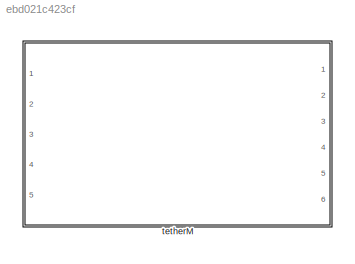
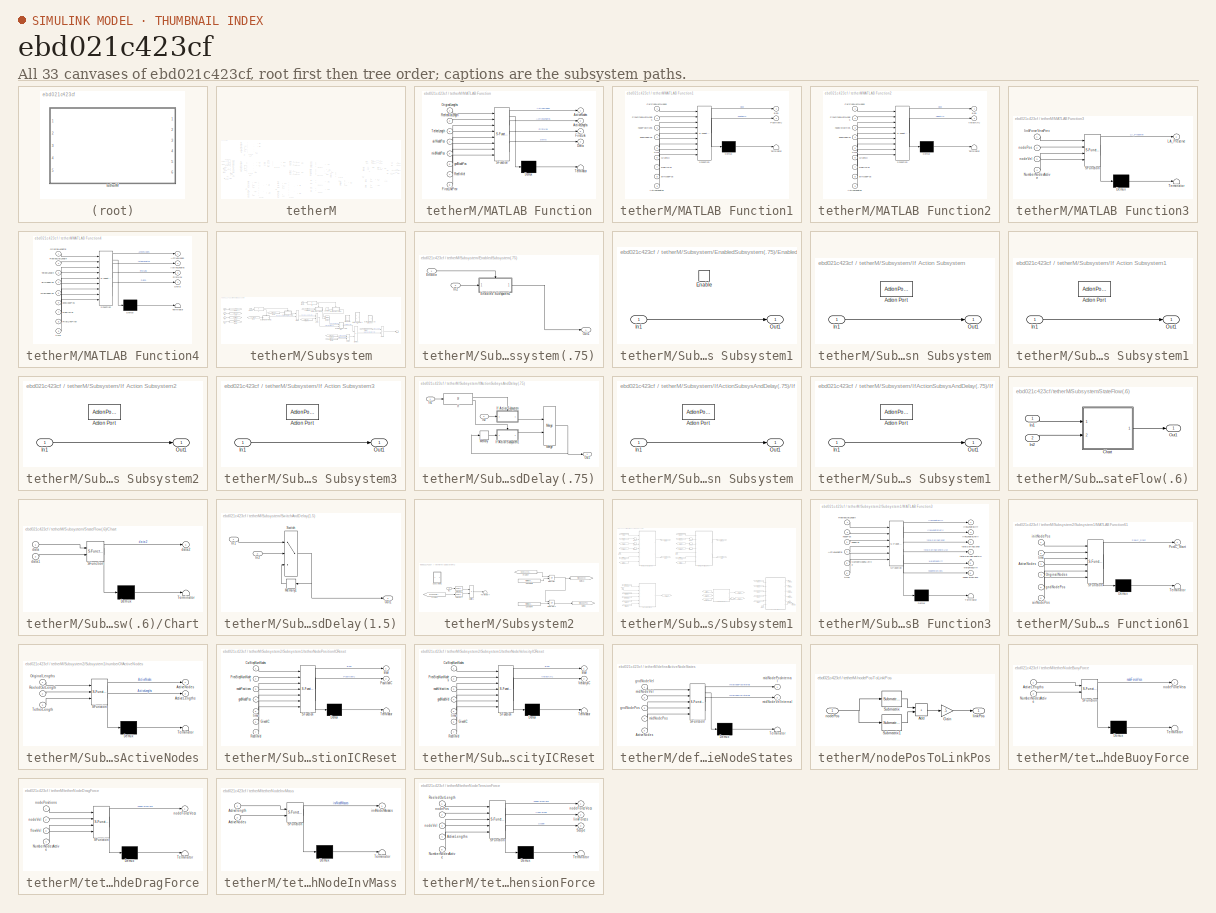
[diagram: thumbnail index - all 33 canvases of the model, root first then tree order]
MODEL slx_ebd021c423cf
KIND library
CONFIG AbsTol = auto
CONFIG EnableMultiTasking = off
CONFIG FixedStep = auto
CONFIG MaxStep = auto
CONFIG MinStep = auto
CONFIG RelTol = 1e-3
CONFIG SampleTimeConstraint = Unconstrained
CONFIG SolverName = VariableStepAuto
CONFIG StartTime = 0.0
CONFIG StopTime = 10.0
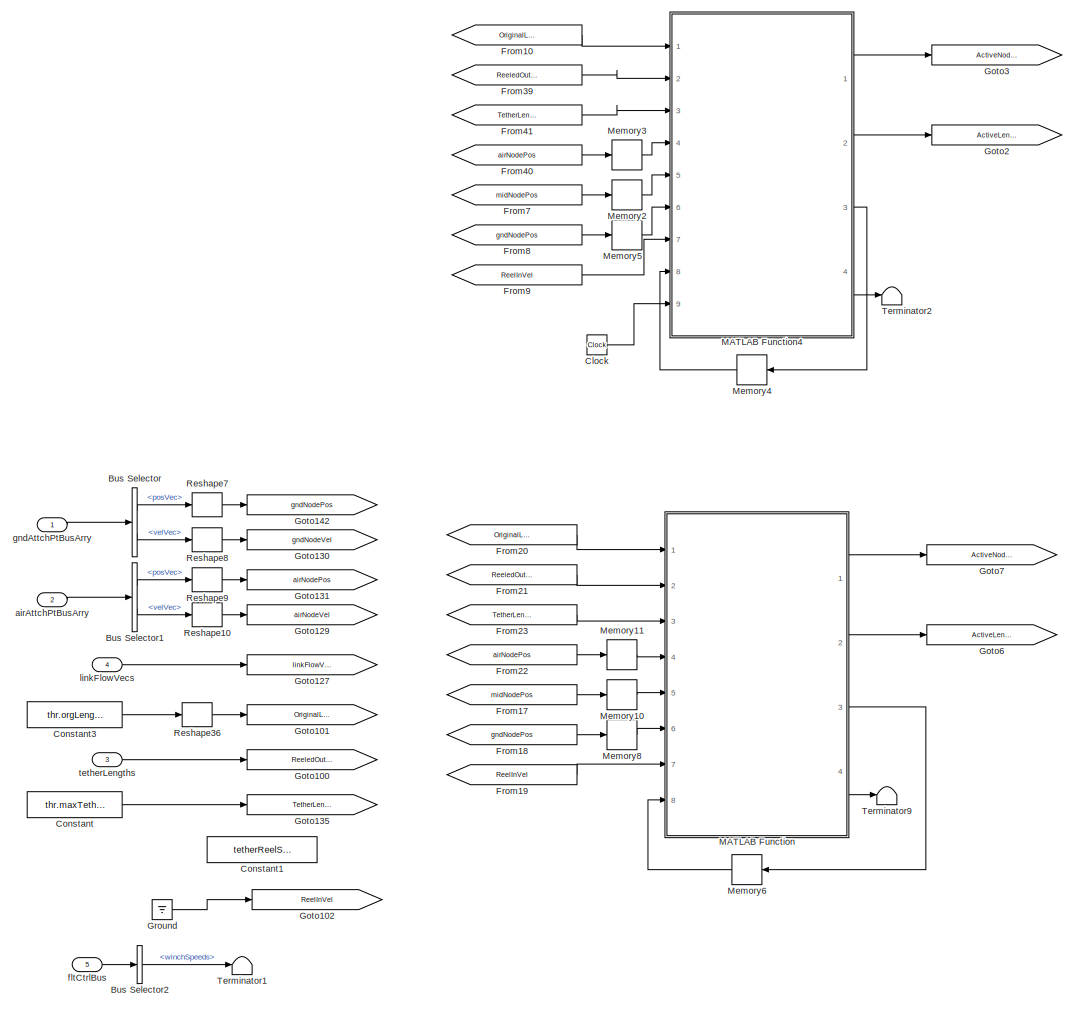
[diagram: tetherM - part 1/5, middle left region]
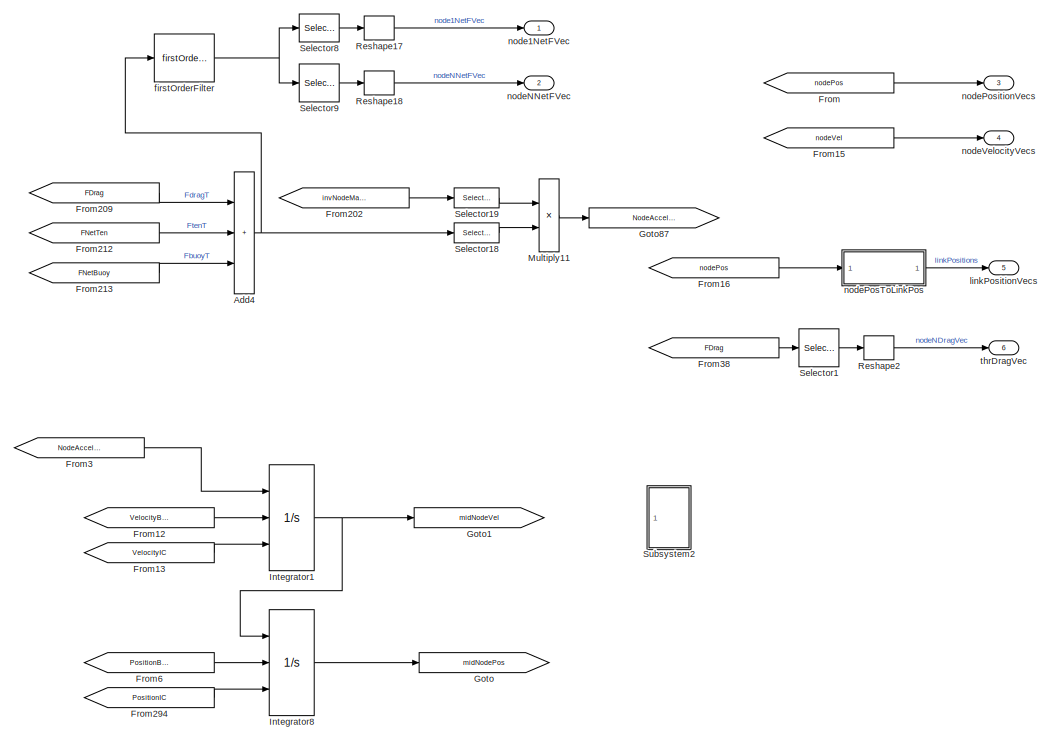
[diagram: tetherM - part 2/5, middle right region]
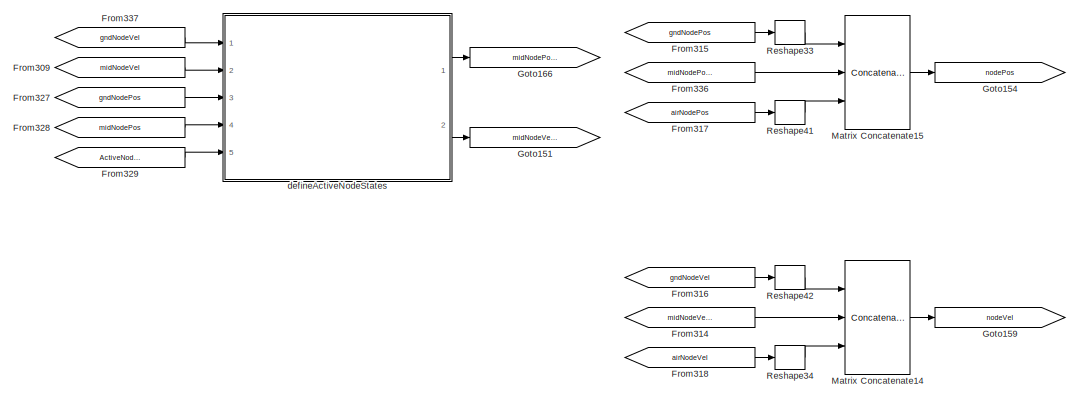
[diagram: tetherM - part 3/5, central region]
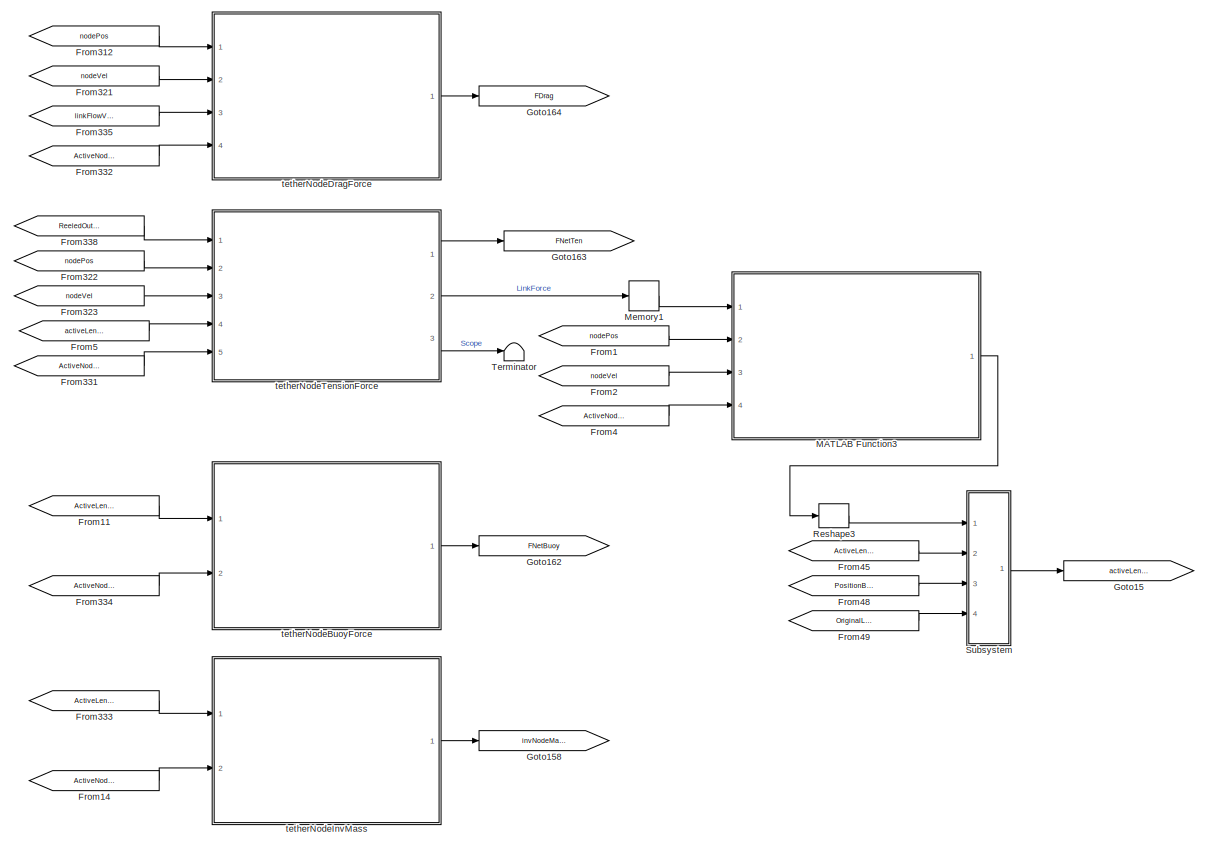
[diagram: tetherM - part 4/5, central region]
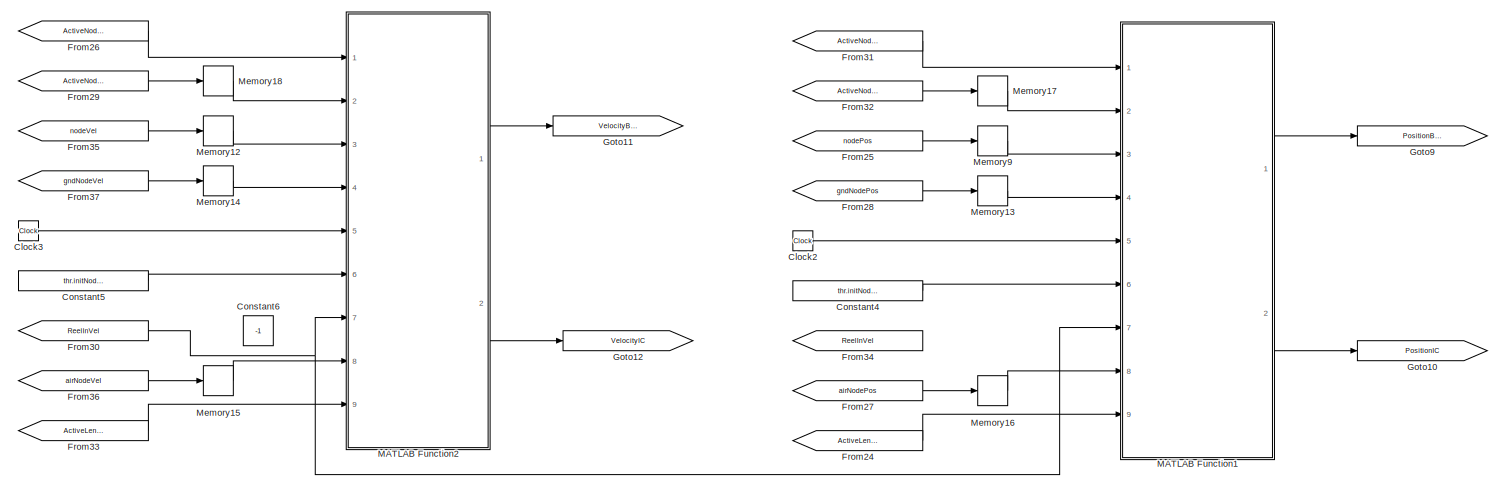
[diagram: tetherM - part 5/5, bottom left region]
BLOCK [SubSystem] tetherM
  Ports = [5, 6]
  RequestExecContextInheritance = off
  VariantControl = VSS_tethers_tetherM
BLOCK [Sum] tetherM/Add4
  IconShape = rectangular
  Inputs = 3
  Ports = [3, 1]
BLOCK [BusSelector] tetherM/Bus Selector
  OutputSignals = posVec,velVec
  Ports = [1, 2]
BLOCK [BusSelector] tetherM/Bus Selector1
  OutputSignals = posVec,velVec
  Ports = [1, 2]
BLOCK [BusSelector] tetherM/Bus Selector2
  OutputSignals = winchSpeeds
  Ports = [1, 1]
BLOCK [Clock] tetherM/Clock
  Commented = on
BLOCK [Clock] tetherM/Clock2
BLOCK [Clock] tetherM/Clock3
BLOCK [Constant] tetherM/Constant
  Value = thr.maxTetherLength.Value
BLOCK [Constant] tetherM/Constant1
  Commented = on
  Value = tetherReelSpeed
BLOCK [Constant] tetherM/Constant3
  Value = thr.orgLengths.Value
BLOCK [Constant] tetherM/Constant4
  Value = thr.initNodePos.Value
BLOCK [Constant] tetherM/Constant5
  Value = thr.initNodeVel.Value
BLOCK [Constant] tetherM/Constant6
  Commented = on
  Value = -1
BLOCK [From] tetherM/From
  GotoTag = nodePos
BLOCK [From] tetherM/From1
  GotoTag = nodePos
BLOCK [From] tetherM/From10
  Commented = on
  GotoTag = OriginalLengths
BLOCK [From] tetherM/From11
  GotoTag = ActiveLengths
BLOCK [From] tetherM/From12
  GotoTag = VelocityBoolean
BLOCK [From] tetherM/From13
  GotoTag = VelocityIC
BLOCK [From] tetherM/From14
  GotoTag = ActiveNodes
BLOCK [From] tetherM/From15
  GotoTag = nodeVel
BLOCK [From] tetherM/From16
  GotoTag = nodePos
BLOCK [From] tetherM/From17
  GotoTag = midNodePos
BLOCK [From] tetherM/From18
  GotoTag = gndNodePos
BLOCK [From] tetherM/From19
  GotoTag = ReelInVel
BLOCK [From] tetherM/From2
  GotoTag = nodeVel
BLOCK [From] tetherM/From20
  GotoTag = OriginalLengths
BLOCK [From] tetherM/From202
  GotoTag = invNodeMasses
BLOCK [From] tetherM/From209
  GotoTag = FDrag
BLOCK [From] tetherM/From21
  GotoTag = ReeledOutLength
BLOCK [From] tetherM/From212
  GotoTag = FNetTen
BLOCK [From] tetherM/From213
  GotoTag = FNetBuoy
BLOCK [From] tetherM/From22
  GotoTag = airNodePos
BLOCK [From] tetherM/From23
  GotoTag = TetherLength
BLOCK [From] tetherM/From24
  GotoTag = ActiveLengths
BLOCK [From] tetherM/From25
  GotoTag = nodePos
BLOCK [From] tetherM/From26
  GotoTag = ActiveNodes
BLOCK [From] tetherM/From27
  GotoTag = airNodePos
BLOCK [From] tetherM/From28
  GotoTag = gndNodePos
BLOCK [From] tetherM/From29
  GotoTag = ActiveNodes
BLOCK [From] tetherM/From294
  GotoTag = PositionIC
BLOCK [From] tetherM/From3
  GotoTag = NodeAccelerations
BLOCK [From] tetherM/From30
  GotoTag = ReelInVel
BLOCK [From] tetherM/From309
  GotoTag = midNodeVel
BLOCK [From] tetherM/From31
  GotoTag = ActiveNodes
BLOCK [From] tetherM/From312
  GotoTag = nodePos
BLOCK [From] tetherM/From314
  GotoTag = midNodeVelInternal
BLOCK [From] tetherM/From315
  GotoTag = gndNodePos
BLOCK [From] tetherM/From316
  GotoTag = gndNodeVel
BLOCK [From] tetherM/From317
  GotoTag = airNodePos
BLOCK [From] tetherM/From318
  GotoTag = airNodeVel
BLOCK [From] tetherM/From32
  GotoTag = ActiveNodes
BLOCK [From] tetherM/From321
  GotoTag = nodeVel
BLOCK [From] tetherM/From322
  GotoTag = nodePos
BLOCK [From] tetherM/From323
  GotoTag = nodeVel
BLOCK [From] tetherM/From327
  GotoTag = gndNodePos
BLOCK [From] tetherM/From328
  GotoTag = midNodePos
BLOCK [From] tetherM/From329
  GotoTag = ActiveNodes
BLOCK [From] tetherM/From33
  GotoTag = ActiveLengths
BLOCK [From] tetherM/From331
  GotoTag = ActiveNodes
BLOCK [From] tetherM/From332
  GotoTag = ActiveNodes
BLOCK [From] tetherM/From333
  GotoTag = ActiveLengths
BLOCK [From] tetherM/From334
  GotoTag = ActiveNodes
BLOCK [From] tetherM/From335
  GotoTag = linkFlowVelVecs
BLOCK [From] tetherM/From336
  GotoTag = midNodePosInternal
BLOCK [From] tetherM/From337
  GotoTag = gndNodeVel
BLOCK [From] tetherM/From338
  GotoTag = ReeledOutLength
BLOCK [From] tetherM/From34
  Commented = on
  GotoTag = ReelInVel
BLOCK [From] tetherM/From35
  GotoTag = nodeVel
BLOCK [From] tetherM/From36
  GotoTag = airNodeVel
BLOCK [From] tetherM/From37
  GotoTag = gndNodeVel
BLOCK [From] tetherM/From38
  GotoTag = FDrag
BLOCK [From] tetherM/From39
  Commented = on
  GotoTag = ReeledOutLength
BLOCK [From] tetherM/From4
  GotoTag = ActiveNodes
BLOCK [From] tetherM/From40
  Commented = on
  GotoTag = airNodePos
BLOCK [From] tetherM/From41
  Commented = on
  GotoTag = TetherLength
BLOCK [From] tetherM/From45
  GotoTag = ActiveLengths
BLOCK [From] tetherM/From48
  GotoTag = PositionBoolean
BLOCK [From] tetherM/From49
  GotoTag = OriginalLengths
BLOCK [From] tetherM/From5
  GotoTag = activeLengthsPreserve
BLOCK [From] tetherM/From6
  GotoTag = PositionBoolean
BLOCK [From] tetherM/From7
  Commented = on
  GotoTag = midNodePos
BLOCK [From] tetherM/From8
  Commented = on
  GotoTag = gndNodePos
BLOCK [From] tetherM/From9
  Commented = on
  GotoTag = ReelInVel
BLOCK [Goto] tetherM/Goto
  GotoTag = midNodePos
BLOCK [Goto] tetherM/Goto1
  GotoTag = midNodeVel
BLOCK [Goto] tetherM/Goto10
  GotoTag = PositionIC
BLOCK [Goto] tetherM/Goto100
  GotoTag = ReeledOutLength
BLOCK [Goto] tetherM/Goto101
  GotoTag = OriginalLengths
BLOCK [Goto] tetherM/Goto102
  GotoTag = ReelInVel
BLOCK [Goto] tetherM/Goto11
  GotoTag = VelocityBoolean
BLOCK [Goto] tetherM/Goto12
  GotoTag = VelocityIC
BLOCK [Goto] tetherM/Goto127
  GotoTag = linkFlowVelVecs
BLOCK [Goto] tetherM/Goto129
  GotoTag = airNodeVel
BLOCK [Goto] tetherM/Goto130
  GotoTag = gndNodeVel
BLOCK [Goto] tetherM/Goto131
  GotoTag = airNodePos
BLOCK [Goto] tetherM/Goto135
  GotoTag = TetherLength
BLOCK [Goto] tetherM/Goto142
  GotoTag = gndNodePos
BLOCK [Goto] tetherM/Goto15
  GotoTag = activeLengthsPreserve
BLOCK [Goto] tetherM/Goto151
  GotoTag = midNodeVelInternal
BLOCK [Goto] tetherM/Goto154
  GotoTag = nodePos
BLOCK [Goto] tetherM/Goto158
  GotoTag = invNodeMasses
BLOCK [Goto] tetherM/Goto159
  GotoTag = nodeVel
BLOCK [Goto] tetherM/Goto162
  GotoTag = FNetBuoy
BLOCK [Goto] tetherM/Goto163
  GotoTag = FNetTen
BLOCK [Goto] tetherM/Goto164
  GotoTag = FDrag
BLOCK [Goto] tetherM/Goto166
  GotoTag = midNodePosInternal
BLOCK [Goto] tetherM/Goto2
  Commented = on
  GotoTag = ActiveLengths
BLOCK [Goto] tetherM/Goto3
  Commented = on
  GotoTag = ActiveNodes
BLOCK [Goto] tetherM/Goto6
  GotoTag = ActiveLengths
BLOCK [Goto] tetherM/Goto7
  GotoTag = ActiveNodes
BLOCK [Goto] tetherM/Goto87
  GotoTag = NodeAccelerations
BLOCK [Goto] tetherM/Goto9
  GotoTag = PositionBoolean
BLOCK [Ground] tetherM/Ground
BLOCK [Integrator] tetherM/Integrator1
  ExternalReset = rising
  InitialConditionSource = external
  Ports = [3, 1]
BLOCK [Integrator] tetherM/Integrator8
  ExternalReset = rising
  InitialConditionSource = external
  Ports = [3, 1]
BLOCK [SubSystem] tetherM/MATLAB Function
  ErrorFcn = Stateflow.Translate.translate
  PermitHierarchicalResolution = ExplicitOnly
  Ports = [8, 4]
  RequestExecContextInheritance = off
  SFBlockType = MATLAB Function
  TreatAsAtomicUnit = on
BLOCK [Demux] tetherM/MATLAB Function/ Demux 
  Outputs = 1
  Ports = [1, 1]
BLOCK [S-Function] tetherM/MATLAB Function/ SFunction 
  EnableBusSupport = off
  FunctionName = sf_sfun
  Parameters = minLinkDeviation,minLinkLength
  PortCounts = [8 5]
  Ports = [8, 5]
  SFcnIsStateOwnerBlock = off
  SFunctionDeploymentMode = off
  Tag = Stateflow S-Function 8
BLOCK [Terminator] tetherM/MATLAB Function/ Terminator 
BLOCK [Outport] tetherM/MATLAB Function/ActiveLengths
  Port = 2
BLOCK [Outport] tetherM/MATLAB Function/ActiveNodes
BLOCK [Outport] tetherM/MATLAB Function/Delta
  Port = 4
BLOCK [Outport] tetherM/MATLAB Function/FirstLink
  Port = 3
BLOCK [Inport] tetherM/MATLAB Function/FirstLinkPrev
  Port = 8
BLOCK [Inport] tetherM/MATLAB Function/OriginalLengths
BLOCK [Inport] tetherM/MATLAB Function/ReelInVel
  Port = 7
BLOCK [Inport] tetherM/MATLAB Function/ReeledOutLength
  Port = 2
BLOCK [Inport] tetherM/MATLAB Function/TetherLength
  Port = 3
BLOCK [Inport] tetherM/MATLAB Function/airNodePos
  Port = 4
BLOCK [Inport] tetherM/MATLAB Function/gndNodePos
  Port = 6
BLOCK [Inport] tetherM/MATLAB Function/midNodePos
  Port = 5
BLOCK [SubSystem] tetherM/MATLAB Function1
  ErrorFcn = Stateflow.Translate.translate
  PermitHierarchicalResolution = ExplicitOnly
  Ports = [9, 2]
  RequestExecContextInheritance = off
  SFBlockType = MATLAB Function
  TreatAsAtomicUnit = on
BLOCK [Demux] tetherM/MATLAB Function1/ Demux 
  Outputs = 1
  Ports = [1, 1]
BLOCK [S-Function] tetherM/MATLAB Function1/ SFunction 
  EnableBusSupport = off
  FunctionName = sf_sfun
  PortCounts = [9 3]
  Ports = [9, 3]
  SFcnIsStateOwnerBlock = off
  SFunctionDeploymentMode = off
  Tag = Stateflow S-Function 9
BLOCK [Terminator] tetherM/MATLAB Function1/ Terminator 
BLOCK [Inport] tetherM/MATLAB Function1/ActiveLengths
  Port = 9
BLOCK [Outport] tetherM/MATLAB Function1/Bool
BLOCK [Inport] tetherM/MATLAB Function1/CurStepNumNodes
BLOCK [Inport] tetherM/MATLAB Function1/GivenIC
  Port = 6
BLOCK [Outport] tetherM/MATLAB Function1/PositionIC
  Port = 2
BLOCK [Inport] tetherM/MATLAB Function1/PrevStepNumNodes
  Port = 2
BLOCK [Inport] tetherM/MATLAB Function1/ReelInVel
  Port = 7
BLOCK [Inport] tetherM/MATLAB Function1/airNodePos
  Port = 8
BLOCK [Inport] tetherM/MATLAB Function1/gndNodePos
  Port = 4
BLOCK [Inport] tetherM/MATLAB Function1/nodePositions
  Port = 3
BLOCK [Inport] tetherM/MATLAB Function1/time
  Port = 5
BLOCK [SubSystem] tetherM/MATLAB Function2
  ErrorFcn = Stateflow.Translate.translate
  PermitHierarchicalResolution = ExplicitOnly
  Ports = [9, 2]
  RequestExecContextInheritance = off
  SFBlockType = MATLAB Function
  TreatAsAtomicUnit = on
BLOCK [Demux] tetherM/MATLAB Function2/ Demux 
  Outputs = 1
  Ports = [1, 1]
BLOCK [S-Function] tetherM/MATLAB Function2/ SFunction 
  EnableBusSupport = off
  FunctionName = sf_sfun
  PortCounts = [9 3]
  Ports = [9, 3]
  SFcnIsStateOwnerBlock = off
  SFunctionDeploymentMode = off
  Tag = Stateflow S-Function 10
BLOCK [Terminator] tetherM/MATLAB Function2/ Terminator 
BLOCK [Inport] tetherM/MATLAB Function2/ActiveLengths
  Port = 9
BLOCK [Outport] tetherM/MATLAB Function2/Bool
BLOCK [Inport] tetherM/MATLAB Function2/CurStepNumNodes
BLOCK [Inport] tetherM/MATLAB Function2/GivenIC
  Port = 6
BLOCK [Inport] tetherM/MATLAB Function2/PrevStepNumNodes
  Port = 2
BLOCK [Inport] tetherM/MATLAB Function2/ReelInVel
  Port = 7
BLOCK [Outport] tetherM/MATLAB Function2/VelocityIC
  Port = 2
BLOCK [Inport] tetherM/MATLAB Function2/airNodePos
  Port = 8
BLOCK [Inport] tetherM/MATLAB Function2/gndNodeVel
  Port = 4
BLOCK [Inport] tetherM/MATLAB Function2/nodeVelocities
  Port = 3
BLOCK [Inport] tetherM/MATLAB Function2/time
  Port = 5
BLOCK [SubSystem] tetherM/MATLAB Function3
  ErrorFcn = Stateflow.Translate.translate
  PermitHierarchicalResolution = ExplicitOnly
  Ports = [4, 1]
  RequestExecContextInheritance = off
  SFBlockType = MATLAB Function
  TreatAsAtomicUnit = on
BLOCK [Demux] tetherM/MATLAB Function3/ Demux 
  Outputs = 1
  Ports = [1, 1]
BLOCK [S-Function] tetherM/MATLAB Function3/ SFunction 
  EnableBusSupport = off
  FunctionName = sf_sfun
  Parameters = dampingRatio,mass,numNodes,thrDiam,youngsMod
  PortCounts = [4 2]
  Ports = [4, 2]
  SFcnIsStateOwnerBlock = off
  SFunctionDeploymentMode = off
  Tag = Stateflow S-Function 11
BLOCK [Terminator] tetherM/MATLAB Function3/ Terminator 
BLOCK [Outport] tetherM/MATLAB Function3/LA_Preserve
BLOCK [Inport] tetherM/MATLAB Function3/NumberNodesActive
  Port = 4
BLOCK [Inport] tetherM/MATLAB Function3/linkForceVecsPrev
BLOCK [Inport] tetherM/MATLAB Function3/nodePos
  Port = 2
BLOCK [Inport] tetherM/MATLAB Function3/nodeVel
  Port = 3
BLOCK [SubSystem] tetherM/MATLAB Function4
  Commented = on
  ErrorFcn = Stateflow.Translate.translate
  PermitHierarchicalResolution = ExplicitOnly
  Ports = [9, 4]
  RequestExecContextInheritance = off
  SFBlockType = MATLAB Function
  TreatAsAtomicUnit = on
BLOCK [Demux] tetherM/MATLAB Function4/ Demux 
  Outputs = 1
  Ports = [1, 1]
BLOCK [S-Function] tetherM/MATLAB Function4/ SFunction 
  EnableBusSupport = off
  FunctionName = sf_sfun
  Parameters = minLinkDeviation,minLinkLength
  PortCounts = [9 5]
  Ports = [9, 5]
  SFcnIsStateOwnerBlock = off
  SFunctionDeploymentMode = off
  Tag = Stateflow S-Function 12
BLOCK [Terminator] tetherM/MATLAB Function4/ Terminator 
BLOCK [Outport] tetherM/MATLAB Function4/ActiveLengths
  Port = 2
BLOCK [Outport] tetherM/MATLAB Function4/ActiveNodes
BLOCK [Outport] tetherM/MATLAB Function4/Delta
  Port = 4
BLOCK [Outport] tetherM/MATLAB Function4/FirstLink
  Port = 3
BLOCK [Inport] tetherM/MATLAB Function4/FirstLinkPrev
  Port = 8
BLOCK [Inport] tetherM/MATLAB Function4/OriginalLengths
BLOCK [Inport] tetherM/MATLAB Function4/ReelInVel
  Port = 7
BLOCK [Inport] tetherM/MATLAB Function4/ReeledOutLength
  Port = 2
BLOCK [Inport] tetherM/MATLAB Function4/TetherLength
  Port = 3
BLOCK [Inport] tetherM/MATLAB Function4/airNodePos
  Port = 4
BLOCK [Inport] tetherM/MATLAB Function4/gndNodePos
  Port = 6
BLOCK [Inport] tetherM/MATLAB Function4/midNodePos
  Port = 5
BLOCK [Inport] tetherM/MATLAB Function4/time
  Port = 9
BLOCK [Concatenate] tetherM/Matrix Concatenate14
  ConcatenateDimension = 2
  Mode = Multidimensional array
  NumInputs = 3
  Ports = [3, 1]
BLOCK [Concatenate] tetherM/Matrix Concatenate15
  ConcatenateDimension = 2
  Mode = Multidimensional array
  NumInputs = 3
  Ports = [3, 1]
BLOCK [Memory] tetherM/Memory1
BLOCK [Memory] tetherM/Memory10
BLOCK [Memory] tetherM/Memory11
BLOCK [Memory] tetherM/Memory12
BLOCK [Memory] tetherM/Memory13
BLOCK [Memory] tetherM/Memory14
BLOCK [Memory] tetherM/Memory15
BLOCK [Memory] tetherM/Memory16
BLOCK [Memory] tetherM/Memory17
BLOCK [Memory] tetherM/Memory18
BLOCK [Memory] tetherM/Memory2
  Commented = on
BLOCK [Memory] tetherM/Memory3
  Commented = on
BLOCK [Memory] tetherM/Memory4
  Commented = on
BLOCK [Memory] tetherM/Memory5
  Commented = on
BLOCK [Memory] tetherM/Memory6
BLOCK [Memory] tetherM/Memory8
BLOCK [Memory] tetherM/Memory9
BLOCK [Product] tetherM/Multiply11
  NameLocation = left
  Ports = [2, 1]
BLOCK [Reshape] tetherM/Reshape10
  OutputDimensionality = Column vector (2-D)
  Ports = [1, 1]
BLOCK [Reshape] tetherM/Reshape17
  OutputDimensionality = Column vector (2-D)
  Ports = [1, 1]
BLOCK [Reshape] tetherM/Reshape18
  OutputDimensionality = Column vector (2-D)
  Ports = [1, 1]
BLOCK [Reshape] tetherM/Reshape2
  OutputDimensionality = Column vector (2-D)
  Ports = [1, 1]
BLOCK [Reshape] tetherM/Reshape3
  OutputDimensionality = Row vector (2-D)
  Ports = [1, 1]
BLOCK [Reshape] tetherM/Reshape33
  OutputDimensionality = Column vector (2-D)
  Ports = [1, 1]
BLOCK [Reshape] tetherM/Reshape34
  OutputDimensionality = Column vector (2-D)
  Ports = [1, 1]
BLOCK [Reshape] tetherM/Reshape36
  OutputDimensionality = Row vector (2-D)
  Ports = [1, 1]
BLOCK [Reshape] tetherM/Reshape41
  OutputDimensionality = Column vector (2-D)
  Ports = [1, 1]
BLOCK [Reshape] tetherM/Reshape42
  OutputDimensionality = Column vector (2-D)
  Ports = [1, 1]
BLOCK [Reshape] tetherM/Reshape7
  OutputDimensionality = Column vector (2-D)
  Ports = [1, 1]
BLOCK [Reshape] tetherM/Reshape8
  OutputDimensionality = Column vector (2-D)
  Ports = [1, 1]
BLOCK [Reshape] tetherM/Reshape9
  OutputDimensionality = Column vector (2-D)
  Ports = [1, 1]
BLOCK [Selector] tetherM/Selector1
  IndexOptions = Select all,Starting index (dialog)
  Indices = [1 3],thr.numNodes.Value
  InputPortWidth = 3
  NumberOfDimensions = 2
  OutputSizes = 1,1
  Ports = [1, 1]
BLOCK [Selector] tetherM/Selector18
  IndexOptions = Select all,Index vector (dialog)
  Indices = [1 3],2:thr.numNodes.Value-1
  InputPortWidth = 3
  NumberOfDimensions = 2
  OutputSizes = 1,1
  Ports = [1, 1]
BLOCK [Selector] tetherM/Selector19
  IndexOptions = Select all,Index vector (dialog)
  Indices = [1 3],2:thr.numNodes.Value-1
  InputPortWidth = 3
  NumberOfDimensions = 2
  OutputSizes = 1,1
  Ports = [1, 1]
BLOCK [Selector] tetherM/Selector8
  IndexOptions = Select all,Index vector (dialog)
  Indices = [1 3],1
  InputPortWidth = 3
  NumberOfDimensions = 2
  OutputSizes = 1,1
  Ports = [1, 1]
BLOCK [Selector] tetherM/Selector9
  IndexOptions = Select all,Starting index (dialog)
  Indices = [1 3],thr.numNodes.Value
  InputPortWidth = 3
  NumberOfDimensions = 2
  OutputSizes = 1,1
  Ports = [1, 1]
BLOCK [SubSystem] tetherM/Subsystem
  Ports = [4, 1]
  RequestExecContextInheritance = off
BLOCK [Sum] tetherM/Subsystem/Add1
  IconShape = rectangular
  Ports = [2, 1]
BLOCK [Sum] tetherM/Subsystem/Add2
  IconShape = rectangular
  Inputs = +-
  Ports = [2, 1]
BLOCK [Clock] tetherM/Subsystem/Clock
BLOCK [Clock] tetherM/Subsystem/Clock6
BLOCK [Constant] tetherM/Subsystem/Constant
  Value = -1
BLOCK [Product] tetherM/Subsystem/Divide
  Inputs = */
  Ports = [2, 1]
BLOCK [Product] tetherM/Subsystem/Divide1
  Inputs = **
  Ports = [2, 1]
BLOCK [SubSystem] tetherM/Subsystem/EnabledSubsystem(.75)
  Ports = [2, 1]
  RequestExecContextInheritance = off
BLOCK [Inport] tetherM/Subsystem/EnabledSubsystem(.75)/Enable
BLOCK [SubSystem] tetherM/Subsystem/EnabledSubsystem(.75)/Enabled Subsystem1
  Ports = [1, 1, 1]
  RequestExecContextInheritance = off
  TreatAsAtomicUnit = on
BLOCK [EnablePort] tetherM/Subsystem/EnabledSubsystem(.75)/Enabled Subsystem1/Enable
  Ports = []
BLOCK [Inport] tetherM/Subsystem/EnabledSubsystem(.75)/Enabled Subsystem1/In1
BLOCK [Outport] tetherM/Subsystem/EnabledSubsystem(.75)/Enabled Subsystem1/Out1
  InitialOutput = zeros(size(thr.orgLengths.Value))
BLOCK [Inport] tetherM/Subsystem/EnabledSubsystem(.75)/In2
  Port = 2
BLOCK [Outport] tetherM/Subsystem/EnabledSubsystem(.75)/Out1
BLOCK [From] tetherM/Subsystem/From
  GotoTag = LA_Preserve
BLOCK [From] tetherM/Subsystem/From1
  GotoTag = ActiveLengths
BLOCK [From] tetherM/Subsystem/From2
  GotoTag = ActiveLengths
BLOCK [From] tetherM/Subsystem/From3
  GotoTag = OriginalLengths
BLOCK [From] tetherM/Subsystem/From45
  GotoTag = PositionBoolean
BLOCK [From] tetherM/Subsystem/From46
  GotoTag = ActiveLengths
BLOCK [From] tetherM/Subsystem/From48
  GotoTag = ActiveLengths
BLOCK [Goto] tetherM/Subsystem/Goto
  GotoTag = ActiveLengths
BLOCK [Goto] tetherM/Subsystem/Goto1
  GotoTag = PositionBoolean
BLOCK [Goto] tetherM/Subsystem/Goto2
  GotoTag = OriginalLengths
BLOCK [Goto] tetherM/Subsystem/Goto3
  GotoTag = LA_Preserve
BLOCK [If] tetherM/Subsystem/If
  IfExpression = u1 == 0
  Ports = [1, 2]
BLOCK [SubSystem] tetherM/Subsystem/If Action Subsystem
  Ports = [1, 1, 0, 0, 0, 0, 0, 1]
  RequestExecContextInheritance = off
  TreatAsAtomicUnit = on
BLOCK [ActionPort] tetherM/Subsystem/If Action Subsystem/Action Port
BLOCK [Inport] tetherM/Subsystem/If Action Subsystem/In1
BLOCK [Outport] tetherM/Subsystem/If Action Subsystem/Out1
BLOCK [SubSystem] tetherM/Subsystem/If Action Subsystem1
  Ports = [1, 1, 0, 0, 0, 0, 0, 1]
  RequestExecContextInheritance = off
  TreatAsAtomicUnit = on
BLOCK [ActionPort] tetherM/Subsystem/If Action Subsystem1/Action Port
BLOCK [Inport] tetherM/Subsystem/If Action Subsystem1/In1
BLOCK [Outport] tetherM/Subsystem/If Action Subsystem1/Out1
BLOCK [SubSystem] tetherM/Subsystem/If Action Subsystem2
  Ports = [1, 1, 0, 0, 0, 0, 0, 1]
  RequestExecContextInheritance = off
  TreatAsAtomicUnit = on
BLOCK [ActionPort] tetherM/Subsystem/If Action Subsystem2/Action Port
BLOCK [Inport] tetherM/Subsystem/If Action Subsystem2/In1
BLOCK [Outport] tetherM/Subsystem/If Action Subsystem2/Out1
BLOCK [SubSystem] tetherM/Subsystem/If Action Subsystem3
  Ports = [1, 1, 0, 0, 0, 0, 0, 1]
  RequestExecContextInheritance = off
  TreatAsAtomicUnit = on
BLOCK [ActionPort] tetherM/Subsystem/If Action Subsystem3/Action Port
BLOCK [Inport] tetherM/Subsystem/If Action Subsystem3/In1
BLOCK [Outport] tetherM/Subsystem/If Action Subsystem3/Out1
BLOCK [If] tetherM/Subsystem/If1
  IfExpression = u1 == 0
  Ports = [1, 2]
BLOCK [SubSystem] tetherM/Subsystem/IfActionSubsysAndDelay(.75)
  Commented = on
  Ports = [2, 1]
  RequestExecContextInheritance = off
BLOCK [If] tetherM/Subsystem/IfActionSubsysAndDelay(.75)/If
  Ports = [1, 2]
BLOCK [SubSystem] tetherM/Subsystem/IfActionSubsysAndDelay(.75)/If Action Subsystem
  Ports = [1, 1, 0, 0, 0, 0, 0, 1]
  RequestExecContextInheritance = off
  TreatAsAtomicUnit = on
BLOCK [ActionPort] tetherM/Subsystem/IfActionSubsysAndDelay(.75)/If Action Subsystem/Action Port
BLOCK [Inport] tetherM/Subsystem/IfActionSubsysAndDelay(.75)/If Action Subsystem/In1
BLOCK [Outport] tetherM/Subsystem/IfActionSubsysAndDelay(.75)/If Action Subsystem/Out1
BLOCK [SubSystem] tetherM/Subsystem/IfActionSubsysAndDelay(.75)/If Action Subsystem1
  Ports = [1, 1, 0, 0, 0, 0, 0, 1]
  RequestExecContextInheritance = off
  TreatAsAtomicUnit = on
BLOCK [ActionPort] tetherM/Subsystem/IfActionSubsysAndDelay(.75)/If Action Subsystem1/Action Port
BLOCK [Inport] tetherM/Subsystem/IfActionSubsysAndDelay(.75)/If Action Subsystem1/In1
BLOCK [Outport] tetherM/Subsystem/IfActionSubsysAndDelay(.75)/If Action Subsystem1/Out1
BLOCK [Inport] tetherM/Subsystem/IfActionSubsysAndDelay(.75)/In1
BLOCK [Inport] tetherM/Subsystem/IfActionSubsysAndDelay(.75)/In2
  Port = 2
BLOCK [Memory] tetherM/Subsystem/IfActionSubsysAndDelay(.75)/Memory
BLOCK [Merge] tetherM/Subsystem/IfActionSubsysAndDelay(.75)/Merge
  InitialOutput = thr.orgLengths.Value
  Ports = [2, 1]
BLOCK [Outport] tetherM/Subsystem/IfActionSubsysAndDelay(.75)/Out1
BLOCK [Inport] tetherM/Subsystem/In1
BLOCK [Inport] tetherM/Subsystem/In2
  Port = 2
BLOCK [Inport] tetherM/Subsystem/In3
  Port = 3
BLOCK [Inport] tetherM/Subsystem/In4
  Port = 4
BLOCK [Merge] tetherM/Subsystem/Merge
  InitialOutput = thr.orgLengths.Value
  Ports = [2, 1]
BLOCK [Merge] tetherM/Subsystem/Merge1
  InitialOutput = [-1]
  Ports = [2, 1]
BLOCK [Outport] tetherM/Subsystem/Out1
BLOCK [SubSystem] tetherM/Subsystem/StateFlow(.6)
  Commented = on
  Ports = [2, 1]
  RequestExecContextInheritance = off
BLOCK [SubSystem] tetherM/Subsystem/StateFlow(.6)/Chart
  ErrorFcn = Stateflow.Translate.translate
  PermitHierarchicalResolution = ExplicitOnly
  Ports = [2, 1]
  RequestExecContextInheritance = off
  SFBlockType = Chart
  TreatAsAtomicUnit = on
BLOCK [Demux] tetherM/Subsystem/StateFlow(.6)/Chart/ Demux 
  Outputs = 1
  Ports = [1, 1]
BLOCK [S-Function] tetherM/Subsystem/StateFlow(.6)/Chart/ SFunction 
  EnableBusSupport = off
  FunctionName = sf_sfun
  PortCounts = [2 2]
  Ports = [2, 2]
  SFcnIsStateOwnerBlock = off
  SFunctionDeploymentMode = off
  Tag = Stateflow S-Function 13
BLOCK [Terminator] tetherM/Subsystem/StateFlow(.6)/Chart/ Terminator 
BLOCK [Inport] tetherM/Subsystem/StateFlow(.6)/Chart/data
BLOCK [Inport] tetherM/Subsystem/StateFlow(.6)/Chart/data1
  Port = 2
BLOCK [Outport] tetherM/Subsystem/StateFlow(.6)/Chart/data2
BLOCK [Inport] tetherM/Subsystem/StateFlow(.6)/In1
BLOCK [Inport] tetherM/Subsystem/StateFlow(.6)/In2
  Port = 2
BLOCK [Outport] tetherM/Subsystem/StateFlow(.6)/Out1
BLOCK [SubSystem] tetherM/Subsystem/SwitchAndDelay(1.5)
  Commented = on
  Ports = [2, 1]
  RequestExecContextInheritance = off
BLOCK [Inport] tetherM/Subsystem/SwitchAndDelay(1.5)/In1
BLOCK [Inport] tetherM/Subsystem/SwitchAndDelay(1.5)/In2
  Port = 2
BLOCK [Memory] tetherM/Subsystem/SwitchAndDelay(1.5)/Memory1
  InitialCondition = zeros(size(thr.orgLengths.Value))
BLOCK [Outport] tetherM/Subsystem/SwitchAndDelay(1.5)/Out1
BLOCK [Switch] tetherM/Subsystem/SwitchAndDelay(1.5)/Switch
  Criteria = u2 > Threshold
  InputSameDT = off
  SaturateOnIntegerOverflow = off
BLOCK [SubSystem] tetherM/Subsystem2
  Commented = on
  Ports = [1]
  RequestExecContextInheritance = off
BLOCK [Constant] tetherM/Subsystem2/Constant7
  Commented = on
  Value = thr.initNodePos.Value
BLOCK [Constant] tetherM/Subsystem2/Constant8
  Commented = on
  Value = thr.initNodeVel.Value
BLOCK [From] tetherM/Subsystem2/From44
  Commented = on
  GotoTag = invNodeMasses
BLOCK [From] tetherM/Subsystem2/From47
  Commented = on
  GotoTag = NodeAccelerations
BLOCK [Goto] tetherM/Subsystem2/Goto13
  Commented = on
  GotoTag = midNodeVel
BLOCK [Goto] tetherM/Subsystem2/Goto8
  Commented = on
  GotoTag = midNodePos
BLOCK [Inport] tetherM/Subsystem2/In1
BLOCK [Integrator] tetherM/Subsystem2/Integrator
  Commented = on
  InitialConditionSource = external
  Ports = [2, 1]
BLOCK [Integrator] tetherM/Subsystem2/Integrator2
  Commented = on
  InitialConditionSource = external
  Ports = [2, 1]
BLOCK [Product] tetherM/Subsystem2/Multiply1
  Commented = on
  NameLocation = left
  Ports = [2, 1]
BLOCK [Selector] tetherM/Subsystem2/Selector2
  Commented = on
  IndexOptions = Select all,Index vector (dialog)
  Indices = [1 3],2:thr.numNodes.Value-1
  InputPortWidth = 3
  NumberOfDimensions = 2
  OutputSizes = 1,1
  Ports = [1, 1]
BLOCK [Selector] tetherM/Subsystem2/Selector3
  Commented = on
  IndexOptions = Select all,Index vector (dialog)
  Indices = [1 3],2:thr.numNodes.Value-1
  InputPortWidth = 3
  NameLocation = left
  NumberOfDimensions = 2
  OutputSizes = 1,1
  Ports = [1, 1]
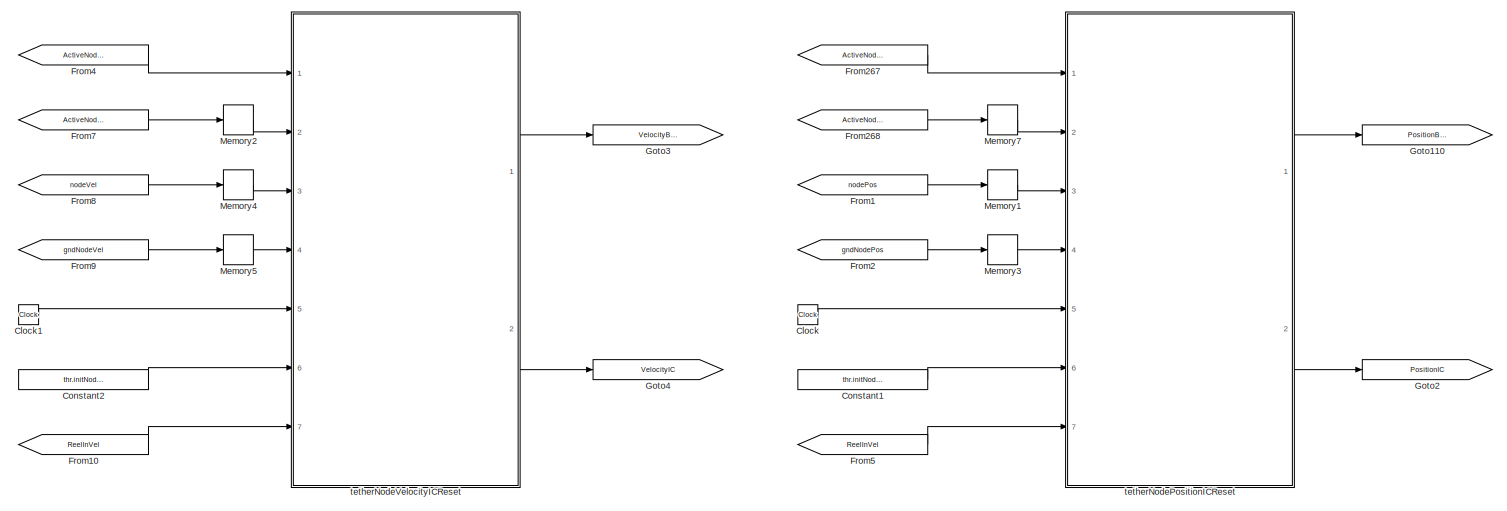
[diagram: tetherM/Subsystem2/Subsystem1 - part 1/3, top left region]
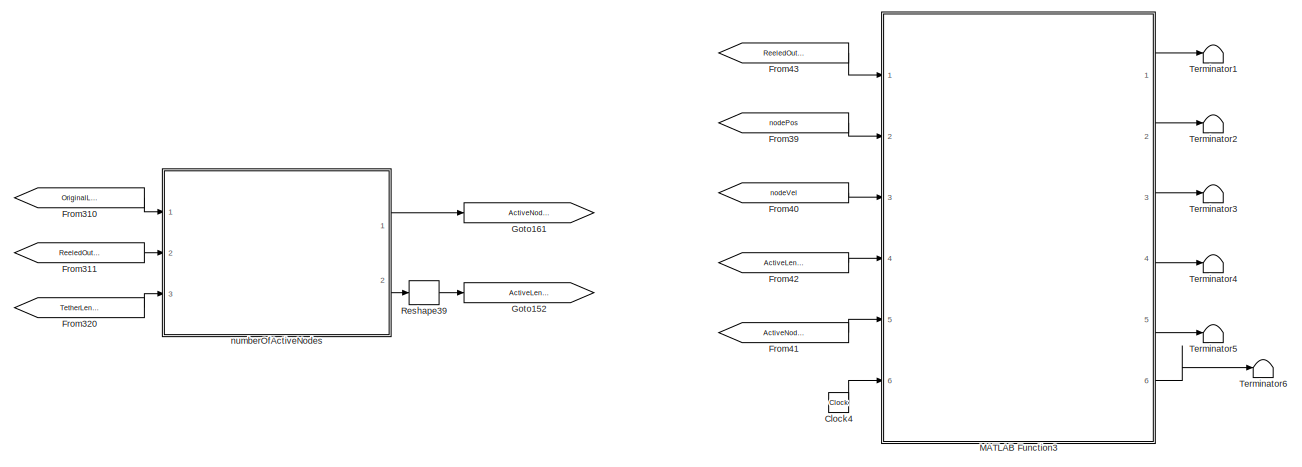
[diagram: tetherM/Subsystem2/Subsystem1 - part 2/3, bottom right region]
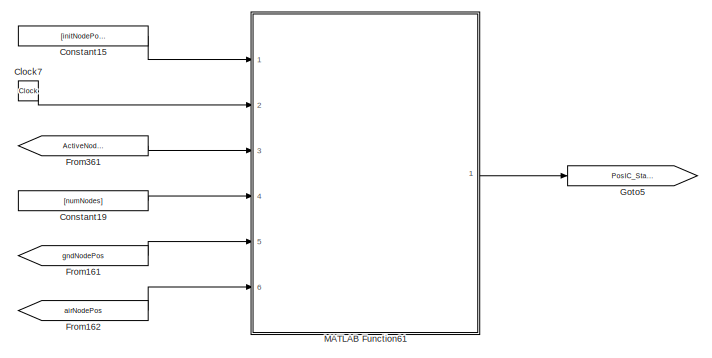
[diagram: tetherM/Subsystem2/Subsystem1 - part 3/3, bottom left region]
BLOCK [SubSystem] tetherM/Subsystem2/Subsystem1
  Ports = []
  RequestExecContextInheritance = off
BLOCK [Clock] tetherM/Subsystem2/Subsystem1/Clock
  Commented = on
BLOCK [Clock] tetherM/Subsystem2/Subsystem1/Clock1
  Commented = on
BLOCK [Clock] tetherM/Subsystem2/Subsystem1/Clock4
  Commented = on
BLOCK [Clock] tetherM/Subsystem2/Subsystem1/Clock7
  Commented = on
BLOCK [Constant] tetherM/Subsystem2/Subsystem1/Constant1
  Commented = on
  Value = thr.initNodePos.Value
BLOCK [Constant] tetherM/Subsystem2/Subsystem1/Constant15
  Commented = on
  Value = [initNodePos]
BLOCK [Constant] tetherM/Subsystem2/Subsystem1/Constant19
  Commented = on
  Value = [numNodes]
BLOCK [Constant] tetherM/Subsystem2/Subsystem1/Constant2
  Commented = on
  Value = thr.initNodeVel.Value
BLOCK [From] tetherM/Subsystem2/Subsystem1/From1
  Commented = on
  GotoTag = nodePos
BLOCK [From] tetherM/Subsystem2/Subsystem1/From10
  Commented = on
  GotoTag = ReelInVel
BLOCK [From] tetherM/Subsystem2/Subsystem1/From161
  Commented = on
  GotoTag = gndNodePos
BLOCK [From] tetherM/Subsystem2/Subsystem1/From162
  Commented = on
  GotoTag = airNodePos
  NameLocation = top
BLOCK [From] tetherM/Subsystem2/Subsystem1/From2
  Commented = on
  GotoTag = gndNodePos
BLOCK [From] tetherM/Subsystem2/Subsystem1/From267
  Commented = on
  GotoTag = ActiveNodes
BLOCK [From] tetherM/Subsystem2/Subsystem1/From268
  Commented = on
  GotoTag = ActiveNodes
BLOCK [From] tetherM/Subsystem2/Subsystem1/From310
  Commented = on
  GotoTag = OriginalLengths
BLOCK [From] tetherM/Subsystem2/Subsystem1/From311
  Commented = on
  GotoTag = ReeledOutLength
BLOCK [From] tetherM/Subsystem2/Subsystem1/From320
  Commented = on
  GotoTag = TetherLength
BLOCK [From] tetherM/Subsystem2/Subsystem1/From361
  Commented = on
  GotoTag = ActiveNodes
BLOCK [From] tetherM/Subsystem2/Subsystem1/From39
  Commented = on
  GotoTag = nodePos
BLOCK [From] tetherM/Subsystem2/Subsystem1/From4
  Commented = on
  GotoTag = ActiveNodes
BLOCK [From] tetherM/Subsystem2/Subsystem1/From40
  Commented = on
  GotoTag = nodeVel
BLOCK [From] tetherM/Subsystem2/Subsystem1/From41
  Commented = on
  GotoTag = ActiveNodes
BLOCK [From] tetherM/Subsystem2/Subsystem1/From42
  Commented = on
  GotoTag = ActiveLengths
BLOCK [From] tetherM/Subsystem2/Subsystem1/From43
  Commented = on
  GotoTag = ReeledOutLength
BLOCK [From] tetherM/Subsystem2/Subsystem1/From5
  Commented = on
  GotoTag = ReelInVel
BLOCK [From] tetherM/Subsystem2/Subsystem1/From7
  Commented = on
  GotoTag = ActiveNodes
BLOCK [From] tetherM/Subsystem2/Subsystem1/From8
  Commented = on
  GotoTag = nodeVel
BLOCK [From] tetherM/Subsystem2/Subsystem1/From9
  Commented = on
  GotoTag = gndNodeVel
BLOCK [Goto] tetherM/Subsystem2/Subsystem1/Goto110
  Commented = on
  GotoTag = PositionBoolean
BLOCK [Goto] tetherM/Subsystem2/Subsystem1/Goto152
  Commented = on
  GotoTag = ActiveLengths
BLOCK [Goto] tetherM/Subsystem2/Subsystem1/Goto161
  Commented = on
  GotoTag = ActiveNodes
BLOCK [Goto] tetherM/Subsystem2/Subsystem1/Goto2
  Commented = on
  GotoTag = PositionIC
BLOCK [Goto] tetherM/Subsystem2/Subsystem1/Goto3
  Commented = on
  GotoTag = VelocityBoolean
BLOCK [Goto] tetherM/Subsystem2/Subsystem1/Goto4
  Commented = on
  GotoTag = VelocityIC
BLOCK [Goto] tetherM/Subsystem2/Subsystem1/Goto5
  Commented = on
  GotoTag = PosIC_Start
BLOCK [SubSystem] tetherM/Subsystem2/Subsystem1/MATLAB Function3
  Commented = on
  ErrorFcn = Stateflow.Translate.translate
  PermitHierarchicalResolution = ExplicitOnly
  Ports = [6, 6]
  RequestExecContextInheritance = off
  SFBlockType = MATLAB Function
  TreatAsAtomicUnit = on
BLOCK [Demux] tetherM/Subsystem2/Subsystem1/MATLAB Function3/ Demux 
  Outputs = 1
  Ports = [1, 1]
BLOCK [S-Function] tetherM/Subsystem2/Subsystem1/MATLAB Function3/ SFunction 
  EnableBusSupport = off
  FunctionName = sf_sfun
  Parameters = dampingRatio,mass,numNodes,thrDiam,youngsMod
  PortCounts = [6 7]
  Ports = [6, 7]
  SFcnIsStateOwnerBlock = off
  SFunctionDeploymentMode = off
  Tag = Stateflow S-Function 14
BLOCK [Terminator] tetherM/Subsystem2/Subsystem1/MATLAB Function3/ Terminator 
BLOCK [Inport] tetherM/Subsystem2/Subsystem1/MATLAB Function3/ActiveLengths
  Port = 4
BLOCK [Inport] tetherM/Subsystem2/Subsystem1/MATLAB Function3/NumberNodesActive
  Port = 5
BLOCK [Inport] tetherM/Subsystem2/Subsystem1/MATLAB Function3/ReeledOutLength
BLOCK [Outport] tetherM/Subsystem2/Subsystem1/MATLAB Function3/linkLengthDeriv
  Port = 2
BLOCK [Outport] tetherM/Subsystem2/Subsystem1/MATLAB Function3/linkLengthDiff
BLOCK [Outport] tetherM/Subsystem2/Subsystem1/MATLAB Function3/nodeForceVecs
  Port = 6
BLOCK [Inport] tetherM/Subsystem2/Subsystem1/MATLAB Function3/nodePos
  Port = 2
BLOCK [Inport] tetherM/Subsystem2/Subsystem1/MATLAB Function3/nodeVel
  Port = 3
BLOCK [Inport] tetherM/Subsystem2/Subsystem1/MATLAB Function3/time
  Port = 6
BLOCK [Outport] tetherM/Subsystem2/Subsystem1/MATLAB Function3/totalSpringConst
  Port = 3
BLOCK [Outport] tetherM/Subsystem2/Subsystem1/MATLAB Function3/totalSpringConstSUM
  Port = 4
BLOCK [Outport] tetherM/Subsystem2/Subsystem1/MATLAB Function3/weightedDiff
  Port = 5
BLOCK [SubSystem] tetherM/Subsystem2/Subsystem1/MATLAB Function61
  Commented = on
  ErrorFcn = Stateflow.Translate.translate
  PermitHierarchicalResolution = ExplicitOnly
  Ports = [6, 1]
  RequestExecContextInheritance = off
  SFBlockType = MATLAB Function
  TreatAsAtomicUnit = on
BLOCK [Demux] tetherM/Subsystem2/Subsystem1/MATLAB Function61/ Demux 
  Outputs = 1
  Ports = [1, 1]
BLOCK [S-Function] tetherM/Subsystem2/Subsystem1/MATLAB Function61/ SFunction 
  EnableBusSupport = off
  FunctionName = sf_sfun
  PortCounts = [6 2]
  Ports = [6, 2]
  SFcnIsStateOwnerBlock = off
  SFunctionDeploymentMode = off
  Tag = Stateflow S-Function 15
BLOCK [Terminator] tetherM/Subsystem2/Subsystem1/MATLAB Function61/ Terminator 
BLOCK [Inport] tetherM/Subsystem2/Subsystem1/MATLAB Function61/ActiveNodes
  Port = 3
BLOCK [Inport] tetherM/Subsystem2/Subsystem1/MATLAB Function61/OriginalNodes
  Port = 4
BLOCK [Outport] tetherM/Subsystem2/Subsystem1/MATLAB Function61/PosIC_Start
BLOCK [Inport] tetherM/Subsystem2/Subsystem1/MATLAB Function61/airNodePos
  Port = 6
BLOCK [Inport] tetherM/Subsystem2/Subsystem1/MATLAB Function61/gndNodePos
  Port = 5
BLOCK [Inport] tetherM/Subsystem2/Subsystem1/MATLAB Function61/initNodePos
BLOCK [Inport] tetherM/Subsystem2/Subsystem1/MATLAB Function61/time
  Port = 2
BLOCK [Memory] tetherM/Subsystem2/Subsystem1/Memory1
  Commented = on
BLOCK [Memory] tetherM/Subsystem2/Subsystem1/Memory2
  Commented = on
BLOCK [Memory] tetherM/Subsystem2/Subsystem1/Memory3
  Commented = on
BLOCK [Memory] tetherM/Subsystem2/Subsystem1/Memory4
  Commented = on
BLOCK [Memory] tetherM/Subsystem2/Subsystem1/Memory5
  Commented = on
BLOCK [Memory] tetherM/Subsystem2/Subsystem1/Memory7
  Commented = on
BLOCK [Reshape] tetherM/Subsystem2/Subsystem1/Reshape39
  Commented = on
  OutputDimensionality = Row vector (2-D)
  Ports = [1, 1]
BLOCK [Terminator] tetherM/Subsystem2/Subsystem1/Terminator1
  Commented = on
BLOCK [Terminator] tetherM/Subsystem2/Subsystem1/Terminator2
  Commented = on
BLOCK [Terminator] tetherM/Subsystem2/Subsystem1/Terminator3
  Commented = on
BLOCK [Terminator] tetherM/Subsystem2/Subsystem1/Terminator4
  Commented = on
BLOCK [Terminator] tetherM/Subsystem2/Subsystem1/Terminator5
  Commented = on
BLOCK [Terminator] tetherM/Subsystem2/Subsystem1/Terminator6
  Commented = on
BLOCK [SubSystem] tetherM/Subsystem2/Subsystem1/numberOfActiveNodes
  Commented = on
  ErrorFcn = Stateflow.Translate.translate
  PermitHierarchicalResolution = ExplicitOnly
  Ports = [3, 2]
  RequestExecContextInheritance = off
  SFBlockType = MATLAB Function
  TreatAsAtomicUnit = on
BLOCK [Demux] tetherM/Subsystem2/Subsystem1/numberOfActiveNodes/ Demux 
  Outputs = 1
  Ports = [1, 1]
BLOCK [S-Function] tetherM/Subsystem2/Subsystem1/numberOfActiveNodes/ SFunction 
  EnableBusSupport = off
  FunctionName = sf_sfun
  PortCounts = [3 3]
  Ports = [3, 3]
  SFcnIsStateOwnerBlock = off
  SFunctionDeploymentMode = off
  Tag = Stateflow S-Function 16
BLOCK [Terminator] tetherM/Subsystem2/Subsystem1/numberOfActiveNodes/ Terminator 
BLOCK [Outport] tetherM/Subsystem2/Subsystem1/numberOfActiveNodes/ActiveLengths
  Port = 2
BLOCK [Outport] tetherM/Subsystem2/Subsystem1/numberOfActiveNodes/ActiveNodes
BLOCK [Inport] tetherM/Subsystem2/Subsystem1/numberOfActiveNodes/OriginalLengths
BLOCK [Inport] tetherM/Subsystem2/Subsystem1/numberOfActiveNodes/ReeledOutLength
  Port = 2
BLOCK [Inport] tetherM/Subsystem2/Subsystem1/numberOfActiveNodes/TetherLength
  Port = 3
BLOCK [SubSystem] tetherM/Subsystem2/Subsystem1/tetherNodePositionICReset
  Commented = on
  ErrorFcn = Stateflow.Translate.translate
  PermitHierarchicalResolution = ExplicitOnly
  Ports = [7, 2]
  RequestExecContextInheritance = off
  SFBlockType = MATLAB Function
  TreatAsAtomicUnit = on
BLOCK [Demux] tetherM/Subsystem2/Subsystem1/tetherNodePositionICReset/ Demux 
  Outputs = 1
  Ports = [1, 1]
BLOCK [S-Function] tetherM/Subsystem2/Subsystem1/tetherNodePositionICReset/ SFunction 
  EnableBusSupport = off
  FunctionName = sf_sfun
  PortCounts = [7 3]
  Ports = [7, 3]
  SFcnIsStateOwnerBlock = off
  SFunctionDeploymentMode = off
  Tag = Stateflow S-Function 17
BLOCK [Terminator] tetherM/Subsystem2/Subsystem1/tetherNodePositionICReset/ Terminator 
BLOCK [Outport] tetherM/Subsystem2/Subsystem1/tetherNodePositionICReset/Bool
BLOCK [Inport] tetherM/Subsystem2/Subsystem1/tetherNodePositionICReset/CurStepNumNodes
BLOCK [Inport] tetherM/Subsystem2/Subsystem1/tetherNodePositionICReset/GivenIC
  Port = 6
BLOCK [Outport] tetherM/Subsystem2/Subsystem1/tetherNodePositionICReset/PositionIC
  Port = 2
BLOCK [Inport] tetherM/Subsystem2/Subsystem1/tetherNodePositionICReset/PrevStepNumNodes
  Port = 2
BLOCK [Inport] tetherM/Subsystem2/Subsystem1/tetherNodePositionICReset/ReelInVel
  Port = 7
BLOCK [Inport] tetherM/Subsystem2/Subsystem1/tetherNodePositionICReset/gndNodePos
  Port = 4
BLOCK [Inport] tetherM/Subsystem2/Subsystem1/tetherNodePositionICReset/nodePositions
  Port = 3
BLOCK [Inport] tetherM/Subsystem2/Subsystem1/tetherNodePositionICReset/time
  Port = 5
BLOCK [SubSystem] tetherM/Subsystem2/Subsystem1/tetherNodeVelocityICReset
  Commented = on
  ErrorFcn = Stateflow.Translate.translate
  PermitHierarchicalResolution = ExplicitOnly
  Ports = [7, 2]
  RequestExecContextInheritance = off
  SFBlockType = MATLAB Function
  TreatAsAtomicUnit = on
BLOCK [Demux] tetherM/Subsystem2/Subsystem1/tetherNodeVelocityICReset/ Demux 
  Outputs = 1
  Ports = [1, 1]
BLOCK [S-Function] tetherM/Subsystem2/Subsystem1/tetherNodeVelocityICReset/ SFunction 
  EnableBusSupport = off
  FunctionName = sf_sfun
  PortCounts = [7 3]
  Ports = [7, 3]
  SFcnIsStateOwnerBlock = off
  SFunctionDeploymentMode = off
  Tag = Stateflow S-Function 18
BLOCK [Terminator] tetherM/Subsystem2/Subsystem1/tetherNodeVelocityICReset/ Terminator 
BLOCK [Outport] tetherM/Subsystem2/Subsystem1/tetherNodeVelocityICReset/Bool
BLOCK [Inport] tetherM/Subsystem2/Subsystem1/tetherNodeVelocityICReset/CurStepNumNodes
BLOCK [Inport] tetherM/Subsystem2/Subsystem1/tetherNodeVelocityICReset/GivenIC
  Port = 6
BLOCK [Inport] tetherM/Subsystem2/Subsystem1/tetherNodeVelocityICReset/PrevStepNumNodes
  Port = 2
BLOCK [Inport] tetherM/Subsystem2/Subsystem1/tetherNodeVelocityICReset/ReelInVel
  Port = 7
BLOCK [Outport] tetherM/Subsystem2/Subsystem1/tetherNodeVelocityICReset/VelocityIC
  Port = 2
BLOCK [Inport] tetherM/Subsystem2/Subsystem1/tetherNodeVelocityICReset/gndNodeVel
  Port = 4
BLOCK [Inport] tetherM/Subsystem2/Subsystem1/tetherNodeVelocityICReset/nodeVelocities
  Port = 3
BLOCK [Inport] tetherM/Subsystem2/Subsystem1/tetherNodeVelocityICReset/time
  Port = 5
BLOCK [Terminator] tetherM/Subsystem2/Terminator7
  Commented = on
BLOCK [Terminator] tetherM/Terminator
BLOCK [Terminator] tetherM/Terminator1
BLOCK [Terminator] tetherM/Terminator2
  Commented = on
BLOCK [Terminator] tetherM/Terminator9
BLOCK [Inport] tetherM/airAttchPtBusArry
  OutDataTypeStr = Bus: thrAttachPtKinematicsBus
  Port = 2
BLOCK [SubSystem] tetherM/defineActiveNodeStates
  ErrorFcn = Stateflow.Translate.translate
  PermitHierarchicalResolution = ExplicitOnly
  Ports = [5, 2]
  RequestExecContextInheritance = off
  SFBlockType = MATLAB Function
  TreatAsAtomicUnit = on
BLOCK [Demux] tetherM/defineActiveNodeStates/ Demux 
  Outputs = 1
  Ports = [1, 1]
BLOCK [S-Function] tetherM/defineActiveNodeStates/ SFunction 
  EnableBusSupport = off
  FunctionName = sf_sfun
  PortCounts = [5 3]
  Ports = [5, 3]
  SFcnIsStateOwnerBlock = off
  SFunctionDeploymentMode = off
  Tag = Stateflow S-Function 19
BLOCK [Terminator] tetherM/defineActiveNodeStates/ Terminator 
BLOCK [Inport] tetherM/defineActiveNodeStates/ActiveNodes
  Port = 5
BLOCK [Inport] tetherM/defineActiveNodeStates/gndNodePos
  Port = 3
BLOCK [Inport] tetherM/defineActiveNodeStates/gndNodeVel
BLOCK [Inport] tetherM/defineActiveNodeStates/midNodePos
  Port = 4
BLOCK [Outport] tetherM/defineActiveNodeStates/midNodePosInternal
BLOCK [Inport] tetherM/defineActiveNodeStates/midNodeVel
  Port = 2
BLOCK [Outport] tetherM/defineActiveNodeStates/midNodeVelInternal
  Port = 2
BLOCK [Reference] tetherM/firstOrderFilter  REF=firstOrderFilter_ul/firstOrderFilter
  Ports = [1, 1]
  SourceBlock = firstOrderFilter_ul/firstOrderFilter
BLOCK [Inport] tetherM/fltCtrlBus
  Port = 5
BLOCK [Inport] tetherM/gndAttchPtBusArry
  OutDataTypeStr = Bus: thrAttachPtKinematicsBus
BLOCK [Inport] tetherM/linkFlowVecs
  Port = 4
BLOCK [Outport] tetherM/linkPositionVecs
  Port = 5
  VectorParamsAs1DForOutWhenUnconnected = off
BLOCK [Outport] tetherM/node1NetFVec
  VectorParamsAs1DForOutWhenUnconnected = off
BLOCK [Outport] tetherM/nodeNNetFVec
  Port = 2
  VectorParamsAs1DForOutWhenUnconnected = off
BLOCK [SubSystem] tetherM/nodePosToLinkPos
  AncestorBlock = nodePosToLinkPos_ul/nodePosToLinkPos
  Ports = [1, 1]
  RequestExecContextInheritance = off
BLOCK [Sum] tetherM/nodePosToLinkPos/Add
  IconShape = rectangular
  Ports = [2, 1]
BLOCK [Gain] tetherM/nodePosToLinkPos/Gain
  Gain = .5
BLOCK [Reference] tetherM/nodePosToLinkPos/Submatrix  REF=matrix_library/Submatrix
  Ports = [1, 1]
  SourceBlock = matrix_library/Submatrix
  SourceProductBaseCode = SL
  SourceType = Submatrix
BLOCK [Reference] tetherM/nodePosToLinkPos/Submatrix1  REF=matrix_library/Submatrix
  Ports = [1, 1]
  SourceBlock = matrix_library/Submatrix
  SourceProductBaseCode = SL
  SourceType = Submatrix
BLOCK [Outport] tetherM/nodePosToLinkPos/linkPos 
  VectorParamsAs1DForOutWhenUnconnected = off
BLOCK [Inport] tetherM/nodePosToLinkPos/nodePos 
BLOCK [Outport] tetherM/nodePositionVecs
  Port = 3
  VectorParamsAs1DForOutWhenUnconnected = off
BLOCK [Outport] tetherM/nodeVelocityVecs
  Port = 4
  VectorParamsAs1DForOutWhenUnconnected = off
BLOCK [Inport] tetherM/tetherLengths
  Port = 3
BLOCK [SubSystem] tetherM/tetherNodeBuoyForce
  ErrorFcn = Stateflow.Translate.translate
  PermitHierarchicalResolution = ExplicitOnly
  Ports = [2, 1]
  RequestExecContextInheritance = off
  SFBlockType = MATLAB Function
  TreatAsAtomicUnit = on
BLOCK [Demux] tetherM/tetherNodeBuoyForce/ Demux 
  Outputs = 1
  Ports = [1, 1]
BLOCK [S-Function] tetherM/tetherNodeBuoyForce/ SFunction 
  EnableBusSupport = off
  FunctionName = sf_sfun
  Parameters = fluidDensity,gravity,numNodes,tetherDensity,thrDiam
  PortCounts = [2 2]
  Ports = [2, 2]
  SFcnIsStateOwnerBlock = off
  SFunctionDeploymentMode = off
  Tag = Stateflow S-Function 20
BLOCK [Terminator] tetherM/tetherNodeBuoyForce/ Terminator 
BLOCK [Inport] tetherM/tetherNodeBuoyForce/ActiveLengths
BLOCK [Inport] tetherM/tetherNodeBuoyForce/NumberNodesActive
  Port = 2
BLOCK [Outport] tetherM/tetherNodeBuoyForce/nodeForceVecs
BLOCK [SubSystem] tetherM/tetherNodeDragForce
  ErrorFcn = Stateflow.Translate.translate
  PermitHierarchicalResolution = ExplicitOnly
  Ports = [4, 1]
  RequestExecContextInheritance = off
  SFBlockType = MATLAB Function
  TreatAsAtomicUnit = on
BLOCK [Demux] tetherM/tetherNodeDragForce/ Demux 
  Outputs = 1
  Ports = [1, 1]
BLOCK [S-Function] tetherM/tetherNodeDragForce/ SFunction 
  EnableBusSupport = off
  FunctionName = sf_sfun
  Parameters = dragCoeff,flowDensity,numNodes,thrDiam
  PortCounts = [4 2]
  Ports = [4, 2]
  SFcnIsStateOwnerBlock = off
  SFunctionDeploymentMode = off
  Tag = Stateflow S-Function 21
BLOCK [Terminator] tetherM/tetherNodeDragForce/ Terminator 
BLOCK [Inport] tetherM/tetherNodeDragForce/NumberNodesActive
  Port = 4
BLOCK [Inport] tetherM/tetherNodeDragForce/flowVel
  Port = 3
BLOCK [Outport] tetherM/tetherNodeDragForce/nodeForceVecs
BLOCK [Inport] tetherM/tetherNodeDragForce/nodePositions
BLOCK [Inport] tetherM/tetherNodeDragForce/nodeVel
  Port = 2
BLOCK [SubSystem] tetherM/tetherNodeInvMass
  ErrorFcn = Stateflow.Translate.translate
  PermitHierarchicalResolution = ExplicitOnly
  Ports = [2, 1]
  RequestExecContextInheritance = off
  SFBlockType = MATLAB Function
  TreatAsAtomicUnit = on
BLOCK [Demux] tetherM/tetherNodeInvMass/ Demux 
  Outputs = 1
  Ports = [1, 1]
BLOCK [S-Function] tetherM/tetherNodeInvMass/ SFunction 
  EnableBusSupport = off
  FunctionName = sf_sfun
  Parameters = numNodes,tetherDensity,thrDiam
  PortCounts = [2 2]
  Ports = [2, 2]
  SFcnIsStateOwnerBlock = off
  SFunctionDeploymentMode = off
  Tag = Stateflow S-Function 22
BLOCK [Terminator] tetherM/tetherNodeInvMass/ Terminator 
BLOCK [Inport] tetherM/tetherNodeInvMass/ActiveNodes
  Port = 2
BLOCK [Inport] tetherM/tetherNodeInvMass/Activelength
BLOCK [Outport] tetherM/tetherNodeInvMass/invNodeMasses
BLOCK [SubSystem] tetherM/tetherNodeTensionForce
  ErrorFcn = Stateflow.Translate.translate
  PermitHierarchicalResolution = ExplicitOnly
  Ports = [5, 3]
  RequestExecContextInheritance = off
  SFBlockType = MATLAB Function
  TreatAsAtomicUnit = on
BLOCK [Demux] tetherM/tetherNodeTensionForce/ Demux 
  Outputs = 1
  Ports = [1, 1]
BLOCK [S-Function] tetherM/tetherNodeTensionForce/ SFunction 
  EnableBusSupport = off
  FunctionName = sf_sfun
  Parameters = dampingRatio,mass,minSoftLength,numNodes,thrDiam,youngsMod
  PortCounts = [5 4]
  Ports = [5, 4]
  SFcnIsStateOwnerBlock = off
  SFunctionDeploymentMode = off
  Tag = Stateflow S-Function 23
BLOCK [Terminator] tetherM/tetherNodeTensionForce/ Terminator 
BLOCK [Inport] tetherM/tetherNodeTensionForce/ActiveLengths
  Port = 4
BLOCK [Inport] tetherM/tetherNodeTensionForce/NumberNodesActive
  Port = 5
BLOCK [Inport] tetherM/tetherNodeTensionForce/ReeledOutLength
BLOCK [Outport] tetherM/tetherNodeTensionForce/Scope
  Port = 3
BLOCK [Outport] tetherM/tetherNodeTensionForce/linkForces
  Port = 2
BLOCK [Outport] tetherM/tetherNodeTensionForce/nodeForceVecs
BLOCK [Inport] tetherM/tetherNodeTensionForce/nodePos
  Port = 2
BLOCK [Inport] tetherM/tetherNodeTensionForce/nodeVel
  Port = 3
BLOCK [Outport] tetherM/thrDragVec
  Port = 6
  VectorParamsAs1DForOutWhenUnconnected = off
NET tetherM/Add4:1 -> tetherM/Selector18:1, tetherM/firstOrderFilter:1
LINE tetherM/Bus Selector1:1 -> tetherM/Reshape9:1
LINE tetherM/Bus Selector1:2 -> tetherM/Reshape10:1
LINE tetherM/Bus Selector2:1 -> tetherM/Terminator1:1
LINE tetherM/Bus Selector:1 -> tetherM/Reshape7:1
LINE tetherM/Bus Selector:2 -> tetherM/Reshape8:1
LINE tetherM/Clock2:1 -> tetherM/MATLAB Function1:5
LINE tetherM/Clock3:1 -> tetherM/MATLAB Function2:5
LINE tetherM/Clock:1 -> tetherM/MATLAB Function4:9
LINE tetherM/Constant3:1 -> tetherM/Reshape36:1
LINE tetherM/Constant4:1 -> tetherM/MATLAB Function1:6
LINE tetherM/Constant5:1 -> tetherM/MATLAB Function2:6
LINE tetherM/Constant:1 -> tetherM/Goto135:1
LINE tetherM/From10:1 -> tetherM/MATLAB Function4:1
LINE tetherM/From11:1 -> tetherM/tetherNodeBuoyForce:1
LINE tetherM/From12:1 -> tetherM/Integrator1:2
LINE tetherM/From13:1 -> tetherM/Integrator1:3
LINE tetherM/From14:1 -> tetherM/tetherNodeInvMass:2
LINE tetherM/From15:1 -> tetherM/nodeVelocityVecs:1
LINE tetherM/From16:1 -> tetherM/nodePosToLinkPos:1
LINE tetherM/From17:1 -> tetherM/Memory10:1
LINE tetherM/From18:1 -> tetherM/Memory8:1
LINE tetherM/From19:1 -> tetherM/MATLAB Function:7
LINE tetherM/From1:1 -> tetherM/MATLAB Function3:2
LINE tetherM/From202:1 -> tetherM/Selector19:1
LINE tetherM/From209:1 -> tetherM/Add4:1
LINE tetherM/From20:1 -> tetherM/MATLAB Function:1
LINE tetherM/From212:1 -> tetherM/Add4:2
LINE tetherM/From213:1 -> tetherM/Add4:3
LINE tetherM/From21:1 -> tetherM/MATLAB Function:2
LINE tetherM/From22:1 -> tetherM/Memory11:1
LINE tetherM/From23:1 -> tetherM/MATLAB Function:3
LINE tetherM/From24:1 -> tetherM/MATLAB Function1:9
LINE tetherM/From25:1 -> tetherM/Memory9:1
LINE tetherM/From26:1 -> tetherM/MATLAB Function2:1
LINE tetherM/From27:1 -> tetherM/Memory16:1
LINE tetherM/From28:1 -> tetherM/Memory13:1
LINE tetherM/From294:1 -> tetherM/Integrator8:3
LINE tetherM/From29:1 -> tetherM/Memory18:1
LINE tetherM/From2:1 -> tetherM/MATLAB Function3:3
LINE tetherM/From309:1 -> tetherM/defineActiveNodeStates:2
NET tetherM/From30:1 -> tetherM/MATLAB Function1:7, tetherM/MATLAB Function2:7
LINE tetherM/From312:1 -> tetherM/tetherNodeDragForce:1
LINE tetherM/From314:1 -> tetherM/Matrix Concatenate14:2
LINE tetherM/From315:1 -> tetherM/Reshape33:1
LINE tetherM/From316:1 -> tetherM/Reshape42:1
LINE tetherM/From317:1 -> tetherM/Reshape41:1
LINE tetherM/From318:1 -> tetherM/Reshape34:1
LINE tetherM/From31:1 -> tetherM/MATLAB Function1:1
LINE tetherM/From321:1 -> tetherM/tetherNodeDragForce:2
LINE tetherM/From322:1 -> tetherM/tetherNodeTensionForce:2
LINE tetherM/From323:1 -> tetherM/tetherNodeTensionForce:3
LINE tetherM/From327:1 -> tetherM/defineActiveNodeStates:3
LINE tetherM/From328:1 -> tetherM/defineActiveNodeStates:4
LINE tetherM/From329:1 -> tetherM/defineActiveNodeStates:5
LINE tetherM/From32:1 -> tetherM/Memory17:1
LINE tetherM/From331:1 -> tetherM/tetherNodeTensionForce:5
LINE tetherM/From332:1 -> tetherM/tetherNodeDragForce:4
LINE tetherM/From333:1 -> tetherM/tetherNodeInvMass:1
LINE tetherM/From334:1 -> tetherM/tetherNodeBuoyForce:2
LINE tetherM/From335:1 -> tetherM/tetherNodeDragForce:3
LINE tetherM/From336:1 -> tetherM/Matrix Concatenate15:2
LINE tetherM/From337:1 -> tetherM/defineActiveNodeStates:1
LINE tetherM/From338:1 -> tetherM/tetherNodeTensionForce:1
LINE tetherM/From33:1 -> tetherM/MATLAB Function2:9
LINE tetherM/From35:1 -> tetherM/Memory12:1
LINE tetherM/From36:1 -> tetherM/Memory15:1
LINE tetherM/From37:1 -> tetherM/Memory14:1
LINE tetherM/From38:1 -> tetherM/Selector1:1
LINE tetherM/From39:1 -> tetherM/MATLAB Function4:2
LINE tetherM/From3:1 -> tetherM/Integrator1:1
LINE tetherM/From40:1 -> tetherM/Memory3:1
LINE tetherM/From41:1 -> tetherM/MATLAB Function4:3
LINE tetherM/From45:1 -> tetherM/Subsystem:2
LINE tetherM/From48:1 -> tetherM/Subsystem:3
LINE tetherM/From49:1 -> tetherM/Subsystem:4
LINE tetherM/From4:1 -> tetherM/MATLAB Function3:4
LINE tetherM/From5:1 -> tetherM/tetherNodeTensionForce:4
LINE tetherM/From6:1 -> tetherM/Integrator8:2
LINE tetherM/From7:1 -> tetherM/Memory2:1
LINE tetherM/From8:1 -> tetherM/Memory5:1
LINE tetherM/From9:1 -> tetherM/MATLAB Function4:7
LINE tetherM/From:1 -> tetherM/nodePositionVecs:1
LINE tetherM/Ground:1 -> tetherM/Goto102:1
NET tetherM/Integrator1:1 -> tetherM/Goto1:1, tetherM/Integrator8:1
LINE tetherM/Integrator8:1 -> tetherM/Goto:1
LINE tetherM/MATLAB Function1:1 -> tetherM/Goto9:1
LINE tetherM/MATLAB Function1:2 -> tetherM/Goto10:1
LINE tetherM/MATLAB Function2:1 -> tetherM/Goto11:1
LINE tetherM/MATLAB Function2:2 -> tetherM/Goto12:1
LINE tetherM/MATLAB Function3:1 -> tetherM/Reshape3:1
LINE tetherM/MATLAB Function4:1 -> tetherM/Goto3:1
LINE tetherM/MATLAB Function4:2 -> tetherM/Goto2:1
LINE tetherM/MATLAB Function4:3 -> tetherM/Memory4:1
LINE tetherM/MATLAB Function4:4 -> tetherM/Terminator2:1
LINE tetherM/MATLAB Function:1 -> tetherM/Goto7:1
LINE tetherM/MATLAB Function:2 -> tetherM/Goto6:1
LINE tetherM/MATLAB Function:3 -> tetherM/Memory6:1
LINE tetherM/MATLAB Function:4 -> tetherM/Terminator9:1
LINE tetherM/Matrix Concatenate14:1 -> tetherM/Goto159:1
LINE tetherM/Matrix Concatenate15:1 -> tetherM/Goto154:1
LINE tetherM/Memory10:1 -> tetherM/MATLAB Function:5
LINE tetherM/Memory11:1 -> tetherM/MATLAB Function:4
LINE tetherM/Memory12:1 -> tetherM/MATLAB Function2:3
LINE tetherM/Memory13:1 -> tetherM/MATLAB Function1:4
LINE tetherM/Memory14:1 -> tetherM/MATLAB Function2:4
LINE tetherM/Memory15:1 -> tetherM/MATLAB Function2:8
LINE tetherM/Memory16:1 -> tetherM/MATLAB Function1:8
LINE tetherM/Memory17:1 -> tetherM/MATLAB Function1:2
LINE tetherM/Memory18:1 -> tetherM/MATLAB Function2:2
LINE tetherM/Memory1:1 -> tetherM/MATLAB Function3:1
LINE tetherM/Memory2:1 -> tetherM/MATLAB Function4:5
LINE tetherM/Memory3:1 -> tetherM/MATLAB Function4:4
LINE tetherM/Memory4:1 -> tetherM/MATLAB Function4:8
LINE tetherM/Memory5:1 -> tetherM/MATLAB Function4:6
LINE tetherM/Memory6:1 -> tetherM/MATLAB Function:8
LINE tetherM/Memory8:1 -> tetherM/MATLAB Function:6
LINE tetherM/Memory9:1 -> tetherM/MATLAB Function1:3
LINE tetherM/Multiply11:1 -> tetherM/Goto87:1
LINE tetherM/Reshape10:1 -> tetherM/Goto129:1
LINE tetherM/Reshape17:1 -> tetherM/node1NetFVec:1
LINE tetherM/Reshape18:1 -> tetherM/nodeNNetFVec:1
LINE tetherM/Reshape2:1 -> tetherM/thrDragVec:1
LINE tetherM/Reshape33:1 -> tetherM/Matrix Concatenate15:1
LINE tetherM/Reshape34:1 -> tetherM/Matrix Concatenate14:3
LINE tetherM/Reshape36:1 -> tetherM/Goto101:1
LINE tetherM/Reshape3:1 -> tetherM/Subsystem:1
LINE tetherM/Reshape41:1 -> tetherM/Matrix Concatenate15:3
LINE tetherM/Reshape42:1 -> tetherM/Matrix Concatenate14:1
LINE tetherM/Reshape7:1 -> tetherM/Goto142:1
LINE tetherM/Reshape8:1 -> tetherM/Goto130:1
LINE tetherM/Reshape9:1 -> tetherM/Goto131:1
LINE tetherM/Selector18:1 -> tetherM/Multiply11:2
LINE tetherM/Selector19:1 -> tetherM/Multiply11:1
LINE tetherM/Selector1:1 -> tetherM/Reshape2:1
LINE tetherM/Selector8:1 -> tetherM/Reshape17:1
LINE tetherM/Selector9:1 -> tetherM/Reshape18:1
LINE tetherM/Subsystem/Add1:1 -> tetherM/Subsystem/Out1:1
LINE tetherM/Subsystem/Add2:1 -> tetherM/Subsystem/EnabledSubsystem(.75):2
LINE tetherM/Subsystem/Clock6:1 -> tetherM/Subsystem/If:1
LINE tetherM/Subsystem/Clock:1 -> tetherM/Subsystem/If1:1
LINE tetherM/Subsystem/Constant:1 -> tetherM/Subsystem/If Action Subsystem1:1
LINE tetherM/Subsystem/Divide1:1 -> tetherM/Subsystem/Add1:2
LINE tetherM/Subsystem/Divide:1 -> tetherM/Subsystem/Divide1:2
LINE tetherM/Subsystem/EnabledSubsystem(.75)/Enable:1 -> tetherM/Subsystem/EnabledSubsystem(.75)/Enabled Subsystem1:enable
LINE tetherM/Subsystem/EnabledSubsystem(.75)/Enabled Subsystem1/In1:1 -> tetherM/Subsystem/EnabledSubsystem(.75)/Enabled Subsystem1/Out1:1
LINE tetherM/Subsystem/EnabledSubsystem(.75)/Enabled Subsystem1:1 -> tetherM/Subsystem/EnabledSubsystem(.75)/Out1:1
LINE tetherM/Subsystem/EnabledSubsystem(.75)/In2:1 -> tetherM/Subsystem/EnabledSubsystem(.75)/Enabled Subsystem1:1
LINE tetherM/Subsystem/EnabledSubsystem(.75):1 -> tetherM/Subsystem/Divide1:1
LINE tetherM/Subsystem/From1:1 -> tetherM/Subsystem/If Action Subsystem:1
LINE tetherM/Subsystem/From2:1 -> tetherM/Subsystem/Add1:1
LINE tetherM/Subsystem/From3:1 -> tetherM/Subsystem/Divide:2
LINE tetherM/Subsystem/From45:1 -> tetherM/Subsystem/If Action Subsystem3:1
LINE tetherM/Subsystem/From46:1 -> tetherM/Subsystem/Add2:2
LINE tetherM/Subsystem/From48:1 -> tetherM/Subsystem/Divide:1
LINE tetherM/Subsystem/From:1 -> tetherM/Subsystem/If Action Subsystem2:1
LINE tetherM/Subsystem/If Action Subsystem/In1:1 -> tetherM/Subsystem/If Action Subsystem/Out1:1
LINE tetherM/Subsystem/If Action Subsystem1/In1:1 -> tetherM/Subsystem/If Action Subsystem1/Out1:1
LINE tetherM/Subsystem/If Action Subsystem1:1 -> tetherM/Subsystem/Merge1:1
LINE tetherM/Subsystem/If Action Subsystem2/In1:1 -> tetherM/Subsystem/If Action Subsystem2/Out1:1
LINE tetherM/Subsystem/If Action Subsystem2:1 -> tetherM/Subsystem/Merge:2
LINE tetherM/Subsystem/If Action Subsystem3/In1:1 -> tetherM/Subsystem/If Action Subsystem3/Out1:1
LINE tetherM/Subsystem/If Action Subsystem3:1 -> tetherM/Subsystem/Merge1:2
LINE tetherM/Subsystem/If Action Subsystem:1 -> tetherM/Subsystem/Merge:1
LINE tetherM/Subsystem/If1:1 -> tetherM/Subsystem/If Action Subsystem1:ifaction
LINE tetherM/Subsystem/If1:2 -> tetherM/Subsystem/If Action Subsystem3:ifaction
LINE tetherM/Subsystem/If:1 -> tetherM/Subsystem/If Action Subsystem:ifaction
LINE tetherM/Subsystem/If:2 -> tetherM/Subsystem/If Action Subsystem2:ifaction
LINE tetherM/Subsystem/IfActionSubsysAndDelay(.75)/If Action Subsystem/In1:1 -> tetherM/Subsystem/IfActionSubsysAndDelay(.75)/If Action Subsystem/Out1:1
LINE tetherM/Subsystem/IfActionSubsysAndDelay(.75)/If Action Subsystem1/In1:1 -> tetherM/Subsystem/IfActionSubsysAndDelay(.75)/If Action Subsystem1/Out1:1
LINE tetherM/Subsystem/IfActionSubsysAndDelay(.75)/If Action Subsystem1:1 -> tetherM/Subsystem/IfActionSubsysAndDelay(.75)/Merge:2
LINE tetherM/Subsystem/IfActionSubsysAndDelay(.75)/If Action Subsystem:1 -> tetherM/Subsystem/IfActionSubsysAndDelay(.75)/Merge:1
LINE tetherM/Subsystem/IfActionSubsysAndDelay(.75)/If:1 -> tetherM/Subsystem/IfActionSubsysAndDelay(.75)/If Action Subsystem:ifaction
LINE tetherM/Subsystem/IfActionSubsysAndDelay(.75)/If:2 -> tetherM/Subsystem/IfActionSubsysAndDelay(.75)/If Action Subsystem1:ifaction
LINE tetherM/Subsystem/IfActionSubsysAndDelay(.75)/In1:1 -> tetherM/Subsystem/IfActionSubsysAndDelay(.75)/If:1
LINE tetherM/Subsystem/IfActionSubsysAndDelay(.75)/In2:1 -> tetherM/Subsystem/IfActionSubsysAndDelay(.75)/If Action Subsystem:1
LINE tetherM/Subsystem/IfActionSubsysAndDelay(.75)/Memory:1 -> tetherM/Subsystem/IfActionSubsysAndDelay(.75)/If Action Subsystem1:1
NET tetherM/Subsystem/IfActionSubsysAndDelay(.75)/Merge:1 -> tetherM/Subsystem/IfActionSubsysAndDelay(.75)/Memory:1, tetherM/Subsystem/IfActionSubsysAndDelay(.75)/Out1:1
LINE tetherM/Subsystem/In1:1 -> tetherM/Subsystem/Goto3:1
LINE tetherM/Subsystem/In2:1 -> tetherM/Subsystem/Goto:1
LINE tetherM/Subsystem/In3:1 -> tetherM/Subsystem/Goto1:1
LINE tetherM/Subsystem/In4:1 -> tetherM/Subsystem/Goto2:1
LINE tetherM/Subsystem/Merge1:1 -> tetherM/Subsystem/EnabledSubsystem(.75):1
LINE tetherM/Subsystem/Merge:1 -> tetherM/Subsystem/Add2:1
LINE tetherM/Subsystem/StateFlow(.6)/Chart:1 -> tetherM/Subsystem/StateFlow(.6)/Out1:1
LINE tetherM/Subsystem/StateFlow(.6)/In1:1 -> tetherM/Subsystem/StateFlow(.6)/Chart:1
LINE tetherM/Subsystem/StateFlow(.6)/In2:1 -> tetherM/Subsystem/StateFlow(.6)/Chart:2
LINE tetherM/Subsystem/SwitchAndDelay(1.5)/In1:1 -> tetherM/Subsystem/SwitchAndDelay(1.5)/Switch:1
LINE tetherM/Subsystem/SwitchAndDelay(1.5)/In2:1 -> tetherM/Subsystem/SwitchAndDelay(1.5)/Switch:2
LINE tetherM/Subsystem/SwitchAndDelay(1.5)/Memory1:1 -> tetherM/Subsystem/SwitchAndDelay(1.5)/Switch:3
NET tetherM/Subsystem/SwitchAndDelay(1.5)/Switch:1 -> tetherM/Subsystem/SwitchAndDelay(1.5)/Memory1:1, tetherM/Subsystem/SwitchAndDelay(1.5)/Out1:1
LINE tetherM/Subsystem2/Constant7:1 -> tetherM/Subsystem2/Integrator2:2
LINE tetherM/Subsystem2/Constant8:1 -> tetherM/Subsystem2/Integrator:2
LINE tetherM/Subsystem2/From44:1 -> tetherM/Subsystem2/Selector2:1
LINE tetherM/Subsystem2/From47:1 -> tetherM/Subsystem2/Integrator:1
LINE tetherM/Subsystem2/In1:1 -> tetherM/Subsystem2/Selector3:1
LINE tetherM/Subsystem2/Integrator2:1 -> tetherM/Subsystem2/Goto8:1
NET tetherM/Subsystem2/Integrator:1 -> tetherM/Subsystem2/Goto13:1, tetherM/Subsystem2/Integrator2:1
LINE tetherM/Subsystem2/Multiply1:1 -> tetherM/Subsystem2/Terminator7:1
LINE tetherM/Subsystem2/Selector2:1 -> tetherM/Subsystem2/Multiply1:2
LINE tetherM/Subsystem2/Selector3:1 -> tetherM/Subsystem2/Multiply1:1
LINE tetherM/Subsystem2/Subsystem1/Clock1:1 -> tetherM/Subsystem2/Subsystem1/tetherNodeVelocityICReset:5
LINE tetherM/Subsystem2/Subsystem1/Clock4:1 -> tetherM/Subsystem2/Subsystem1/MATLAB Function3:6
LINE tetherM/Subsystem2/Subsystem1/Clock7:1 -> tetherM/Subsystem2/Subsystem1/MATLAB Function61:2
LINE tetherM/Subsystem2/Subsystem1/Clock:1 -> tetherM/Subsystem2/Subsystem1/tetherNodePositionICReset:5
LINE tetherM/Subsystem2/Subsystem1/Constant15:1 -> tetherM/Subsystem2/Subsystem1/MATLAB Function61:1
LINE tetherM/Subsystem2/Subsystem1/Constant19:1 -> tetherM/Subsystem2/Subsystem1/MATLAB Function61:4
LINE tetherM/Subsystem2/Subsystem1/Constant1:1 -> tetherM/Subsystem2/Subsystem1/tetherNodePositionICReset:6
LINE tetherM/Subsystem2/Subsystem1/Constant2:1 -> tetherM/Subsystem2/Subsystem1/tetherNodeVelocityICReset:6
LINE tetherM/Subsystem2/Subsystem1/From10:1 -> tetherM/Subsystem2/Subsystem1/tetherNodeVelocityICReset:7
LINE tetherM/Subsystem2/Subsystem1/From161:1 -> tetherM/Subsystem2/Subsystem1/MATLAB Function61:5
LINE tetherM/Subsystem2/Subsystem1/From162:1 -> tetherM/Subsystem2/Subsystem1/MATLAB Function61:6
LINE tetherM/Subsystem2/Subsystem1/From1:1 -> tetherM/Subsystem2/Subsystem1/Memory1:1
LINE tetherM/Subsystem2/Subsystem1/From267:1 -> tetherM/Subsystem2/Subsystem1/tetherNodePositionICReset:1
LINE tetherM/Subsystem2/Subsystem1/From268:1 -> tetherM/Subsystem2/Subsystem1/Memory7:1
LINE tetherM/Subsystem2/Subsystem1/From2:1 -> tetherM/Subsystem2/Subsystem1/Memory3:1
LINE tetherM/Subsystem2/Subsystem1/From310:1 -> tetherM/Subsystem2/Subsystem1/numberOfActiveNodes:1
LINE tetherM/Subsystem2/Subsystem1/From311:1 -> tetherM/Subsystem2/Subsystem1/numberOfActiveNodes:2
LINE tetherM/Subsystem2/Subsystem1/From320:1 -> tetherM/Subsystem2/Subsystem1/numberOfActiveNodes:3
LINE tetherM/Subsystem2/Subsystem1/From361:1 -> tetherM/Subsystem2/Subsystem1/MATLAB Function61:3
LINE tetherM/Subsystem2/Subsystem1/From39:1 -> tetherM/Subsystem2/Subsystem1/MATLAB Function3:2
LINE tetherM/Subsystem2/Subsystem1/From40:1 -> tetherM/Subsystem2/Subsystem1/MATLAB Function3:3
LINE tetherM/Subsystem2/Subsystem1/From41:1 -> tetherM/Subsystem2/Subsystem1/MATLAB Function3:5
LINE tetherM/Subsystem2/Subsystem1/From42:1 -> tetherM/Subsystem2/Subsystem1/MATLAB Function3:4
LINE tetherM/Subsystem2/Subsystem1/From43:1 -> tetherM/Subsystem2/Subsystem1/MATLAB Function3:1
LINE tetherM/Subsystem2/Subsystem1/From4:1 -> tetherM/Subsystem2/Subsystem1/tetherNodeVelocityICReset:1
LINE tetherM/Subsystem2/Subsystem1/From5:1 -> tetherM/Subsystem2/Subsystem1/tetherNodePositionICReset:7
LINE tetherM/Subsystem2/Subsystem1/From7:1 -> tetherM/Subsystem2/Subsystem1/Memory2:1
LINE tetherM/Subsystem2/Subsystem1/From8:1 -> tetherM/Subsystem2/Subsystem1/Memory4:1
LINE tetherM/Subsystem2/Subsystem1/From9:1 -> tetherM/Subsystem2/Subsystem1/Memory5:1
LINE tetherM/Subsystem2/Subsystem1/MATLAB Function3:1 -> tetherM/Subsystem2/Subsystem1/Terminator1:1
LINE tetherM/Subsystem2/Subsystem1/MATLAB Function3:2 -> tetherM/Subsystem2/Subsystem1/Terminator2:1
LINE tetherM/Subsystem2/Subsystem1/MATLAB Function3:3 -> tetherM/Subsystem2/Subsystem1/Terminator3:1
LINE tetherM/Subsystem2/Subsystem1/MATLAB Function3:4 -> tetherM/Subsystem2/Subsystem1/Terminator4:1
LINE tetherM/Subsystem2/Subsystem1/MATLAB Function3:5 -> tetherM/Subsystem2/Subsystem1/Terminator5:1
LINE tetherM/Subsystem2/Subsystem1/MATLAB Function3:6 -> tetherM/Subsystem2/Subsystem1/Terminator6:1
LINE tetherM/Subsystem2/Subsystem1/MATLAB Function61:1 -> tetherM/Subsystem2/Subsystem1/Goto5:1
LINE tetherM/Subsystem2/Subsystem1/Memory1:1 -> tetherM/Subsystem2/Subsystem1/tetherNodePositionICReset:3
LINE tetherM/Subsystem2/Subsystem1/Memory2:1 -> tetherM/Subsystem2/Subsystem1/tetherNodeVelocityICReset:2
LINE tetherM/Subsystem2/Subsystem1/Memory3:1 -> tetherM/Subsystem2/Subsystem1/tetherNodePositionICReset:4
LINE tetherM/Subsystem2/Subsystem1/Memory4:1 -> tetherM/Subsystem2/Subsystem1/tetherNodeVelocityICReset:3
LINE tetherM/Subsystem2/Subsystem1/Memory5:1 -> tetherM/Subsystem2/Subsystem1/tetherNodeVelocityICReset:4
LINE tetherM/Subsystem2/Subsystem1/Memory7:1 -> tetherM/Subsystem2/Subsystem1/tetherNodePositionICReset:2
LINE tetherM/Subsystem2/Subsystem1/Reshape39:1 -> tetherM/Subsystem2/Subsystem1/Goto152:1
LINE tetherM/Subsystem2/Subsystem1/numberOfActiveNodes:1 -> tetherM/Subsystem2/Subsystem1/Goto161:1
LINE tetherM/Subsystem2/Subsystem1/numberOfActiveNodes:2 -> tetherM/Subsystem2/Subsystem1/Reshape39:1
LINE tetherM/Subsystem2/Subsystem1/tetherNodePositionICReset:1 -> tetherM/Subsystem2/Subsystem1/Goto110:1
LINE tetherM/Subsystem2/Subsystem1/tetherNodePositionICReset:2 -> tetherM/Subsystem2/Subsystem1/Goto2:1
LINE tetherM/Subsystem2/Subsystem1/tetherNodeVelocityICReset:1 -> tetherM/Subsystem2/Subsystem1/Goto3:1
LINE tetherM/Subsystem2/Subsystem1/tetherNodeVelocityICReset:2 -> tetherM/Subsystem2/Subsystem1/Goto4:1
LINE tetherM/Subsystem:1 -> tetherM/Goto15:1
LINE tetherM/airAttchPtBusArry:1 -> tetherM/Bus Selector1:1
LINE tetherM/defineActiveNodeStates:1 -> tetherM/Goto166:1
LINE tetherM/defineActiveNodeStates:2 -> tetherM/Goto151:1
NET tetherM/firstOrderFilter:1 -> tetherM/Selector8:1, tetherM/Selector9:1
LINE tetherM/fltCtrlBus:1 -> tetherM/Bus Selector2:1
LINE tetherM/gndAttchPtBusArry:1 -> tetherM/Bus Selector:1
LINE tetherM/linkFlowVecs:1 -> tetherM/Goto127:1
LINE tetherM/nodePosToLinkPos:1 -> tetherM/linkPositionVecs:1
LINE tetherM/tetherLengths:1 -> tetherM/Goto100:1
LINE tetherM/tetherNodeBuoyForce:1 -> tetherM/Goto162:1
LINE tetherM/tetherNodeDragForce:1 -> tetherM/Goto164:1
LINE tetherM/tetherNodeInvMass:1 -> tetherM/Goto158:1
LINE tetherM/tetherNodeTensionForce:1 -> tetherM/Goto163:1
LINE tetherM/tetherNodeTensionForce:2 -> tetherM/Memory1:1
LINE tetherM/tetherNodeTensionForce:3 -> tetherM/Terminator:1
note: NET lines group one-source signal fan-out (src -> all destinations, sorted); 1:1 wires keep LINE
CHART tetherM/Subsystem/StateFlow(.6)/Chart states=0 transitions=1
CHART tetherM/Subsystem2/Subsystem1/MATLAB Function3 states=1 transitions=1
  STATE_LABEL 'eML_blk_kernel()'
  STATE_LABEL 'SCRIPT:\nfunction [linkLengthDiff,linkLengthDeriv,totalSpringConst,totalSpringConstSUM,weightedDiff,nodeForceVecs] = fcn(ReeledOutLength, nodePos,nodeVel,ActiveLengths,NumberNodesActive,time, numNodes, thrDiam, youngsMod, dampingRatio, mass)\n\nNo = numNodes;\nNa = NumberNodesActive;\n\nunstretchedLength = ReeledOutLength; %Total Reeled out length\n\n%finds vectors between nodes\nlinkVecs  = diff(nodePos,1...<+1829ch>'
CHART tetherM/Subsystem2/Subsystem1/MATLAB Function61 states=1 transitions=1
  STATE_LABEL 'eML_blk_kernel()'
  STATE_LABEL 'SCRIPT:\nfunction PosIC_Start = fcn(initNodePos,time, ActiveNodes, OriginalNodes,gndNodePos,airNodePos)\n\nif time==0\n    Na = ActiveNodes;\n    No = 11;%OriginalNodes;\n    \n    TetherVec = [linspace(gndNodePos(1),airNodePos(1),Na);...\n                 linspace(gndNodePos(2),airNodePos(2),Na);...\n                 linspace(gndNodePos(3),airNodePos(3),Na)];\n    PosIC_Start = [gndNodePos(1)*ones(1,No-2);...<+436ch>'
CHART tetherM/Subsystem2/Subsystem1/numberOfActiveNodes states=1 transitions=1
  STATE_LABEL 'eML_blk_kernel()'
  STATE_LABEL 'SCRIPT:\nfunction [ActiveNodes, ActiveLengths] = fcn(OriginalLengths, ReeledOutLength, TetherLength)\n    [ActiveNodes, ActiveLengths] = numberOfActiveNodes(OriginalLengths, ReeledOutLength, TetherLength);\nend'
CHART tetherM/Subsystem2/Subsystem1/tetherNodePositionICReset states=1 transitions=1
  STATE_LABEL 'eML_blk_kernel()'
  STATE_LABEL 'SCRIPT:\nfunction [Bool,PositionIC]  = fcn(CurStepNumNodes, PrevStepNumNodes, nodePositions, gndNodePos, time, GivenIC, ReelInVel)\n    [Bool,PositionIC]  = tetherNodePositionICReset(CurStepNumNodes, PrevStepNumNodes, nodePositions, gndNodePos, time, GivenIC, ReelInVel);\nend'
CHART tetherM/Subsystem2/Subsystem1/tetherNodeVelocityICReset states=1 transitions=1
  STATE_LABEL 'eML_blk_kernel()'
  STATE_LABEL 'SCRIPT:\nfunction [Bool,VelocityIC]  = fcn(CurStepNumNodes, PrevStepNumNodes, nodeVelocities, gndNodeVel, time, GivenIC, ReelInVel)\n    [Bool,VelocityIC]  = tetherNodeVelocityICReset(CurStepNumNodes, PrevStepNumNodes, nodeVelocities, gndNodeVel, time, GivenIC, ReelInVel);\nend              '
CHART tetherM/defineActiveNodeStates states=1 transitions=1
  STATE_LABEL 'eML_blk_kernel()'
  STATE_LABEL 'SCRIPT:\nfunction [midNodePosInternal,  midNodeVelInternal] = fcn(gndNodeVel,midNodeVel,gndNodePos, midNodePos, ActiveNodes)\n\nNo = size(midNodePos,2)+2;\nNa = ActiveNodes;\n\n% Reeled In Nodes are ground\nmidNodePosInternal = [gndNodePos(1)*ones(1,No-2);...\n                      gndNodePos(2)*ones(1,No-2);...\n                      gndNodePos(3)*ones(1,No-2)];\n                  \nmidNodeVelInternal = [gn...<+337ch>'
CHART tetherM/tetherNodeBuoyForce states=1 transitions=1
  STATE_LABEL 'eML_blk_kernel()'
  STATE_LABEL 'SCRIPT:\nfunction nodeForceVecs = fcn(ActiveLengths, NumberNodesActive, numNodes, thrDiam, tetherDensity, gravity, fluidDensity)\n    nodeForceVecs = tetherNodeBuoyForce(ActiveLengths, NumberNodesActive, numNodes, thrDiam, tetherDensity, gravity, fluidDensity);\nend'
CHART tetherM/tetherNodeDragForce states=1 transitions=1
  STATE_LABEL 'eML_blk_kernel()'
  STATE_LABEL 'SCRIPT:\nfunction nodeForceVecs = fcn(nodePositions,nodeVel, flowVel, NumberNodesActive, numNodes, dragCoeff, thrDiam, flowDensity)\n    nodeForceVecs = tetherNodeDragForce(nodePositions,nodeVel, flowVel, NumberNodesActive, numNodes, dragCoeff, thrDiam, flowDensity);\nend\n\n'
CHART tetherM/tetherNodeInvMass states=1 transitions=1
  STATE_LABEL 'eML_blk_kernel()'
  STATE_LABEL 'SCRIPT:\nfunction invNodeMasses  = fcn(Activelength,ActiveNodes, numNodes, thrDiam, tetherDensity)\n    invNodeMasses  = tetherNodeInvMass(Activelength,ActiveNodes, numNodes, thrDiam, tetherDensity);\nend\n'
CHART tetherM/tetherNodeTensionForce states=1 transitions=1
  STATE_LABEL 'eML_blk_kernel()'
  STATE_LABEL 'SCRIPT:\nfunction  [nodeForceVecs,linkForces,Scope]    = fcn(ReeledOutLength, nodePos, nodeVel, ActiveLengths,NumberNodesActive, numNodes, thrDiam, youngsMod, dampingRatio, mass,minSoftLength)\n     [nodeForceVecs,linkForces,Scope]  = tetherNodeTensionForce(ReeledOutLength, nodePos, nodeVel, ActiveLengths,NumberNodesActive, numNodes, thrDiam, youngsMod, dampingRatio, mass,minSoftLength);\n    Scope;\n...<+4ch>'
CHART tetherM/MATLAB Function states=1 transitions=1
  STATE_LABEL 'eML_blk_kernel()'
  STATE_LABEL 'SCRIPT:\nfunction [ActiveNodes, ActiveLengths,FirstLink,Delta] = fcn(OriginalLengths, ReeledOutLength, TetherLength,airNodePos, midNodePos, gndNodePos,ReelInVel,FirstLinkPrev,minLinkLength, minLinkDeviation)\n    [ActiveNodes, ActiveLengths,FirstLink,Delta] = numberOfActiveNodes(OriginalLengths, ReeledOutLength, TetherLength,airNodePos, midNodePos, gndNodePos,ReelInVel,FirstLinkPrev,minLinkLength,mi...<+20ch>'
CHART tetherM/MATLAB Function1 states=1 transitions=1
  STATE_LABEL 'eML_blk_kernel()'
  STATE_LABEL 'SCRIPT:\nfunction [Bool,PositionIC]  = fcn(CurStepNumNodes, PrevStepNumNodes, nodePositions, gndNodePos, time, GivenIC, ReelInVel, airNodePos, ActiveLengths)\n\nif ReelInVel<=0\n    if time==0\n        PositionIC = GivenIC;\n        Bool = 1;\n    else\n        Na = CurStepNumNodes;\n        No = size(nodePositions,2);\n\n        if PrevStepNumNodes==0\n            Nc = CurStepNumNodes;\n            Np = Nc;\n ...<+1377ch>'
CHART tetherM/MATLAB Function2 states=1 transitions=1
  STATE_LABEL 'eML_blk_kernel()'
  STATE_LABEL 'SCRIPT:\nfunction [Bool,VelocityIC]  = fcn(CurStepNumNodes, PrevStepNumNodes, nodeVelocities, gndNodeVel, time, GivenIC, ReelInVel, airNodePos, ActiveLengths)\n\nif ReelInVel<=0\n    if time==0\n        VelocityIC = GivenIC;\n        Bool = 1;\n    else\n        Na = CurStepNumNodes;\n        No = size(nodeVelocities,2);\n\n        if PrevStepNumNodes==0\n            Nc = CurStepNumNodes;\n            Np = Nc;...<+1383ch>'
CHART tetherM/MATLAB Function3 states=1 transitions=1
  STATE_LABEL 'eML_blk_kernel()'
  STATE_LABEL 'SCRIPT:\nfunction LA_Preserve   = tetherNodeTensionForce(linkForceVecsPrev, nodePos, nodeVel, ...\n    NumberNodesActive, numNodes, thrDiam, youngsMod, mass, dampingRatio)\n\n\nNo = numNodes;          %Total Nodes\nNa = NumberNodesActive; %Nodes that arent reeled-in\n\n%Finds Spring Constant\nZeroCheck = zeros(1,numNodes-1);\nif Na>2\n    ZeroCheck(1,(No-Na+1):end) = ones(1,Na-1);\nend\n\n%finds vectors between...<+866ch>'
CHART tetherM/MATLAB Function4 states=1 transitions=1
  STATE_LABEL 'eML_blk_kernel()'
  STATE_LABEL 'SCRIPT:\nfunction [ActiveNodes, ActiveLengths,FirstLink,Delta] = fcn(OriginalLengths, ReeledOutLength, TetherLength,airNodePos, midNodePos, gndNodePos,ReelInVel,FirstLinkPrev,minLinkLength, minLinkDeviation, time)\n\n%Number of nodes\nNo = length(OriginalLengths)+1;\n\n%Prealocated L and Activelengths\nActiveLengths = zeros(size(OriginalLengths));\nL = zeros(size(ActiveLengths));\n\n%Set Flags\nflag = false;...<+1471ch>'
CHART  states=0 transitions=0
CHART  states=0 transitions=0
CHART  states=0 transitions=0
CHART  states=0 transitions=0
CHART  states=0 transitions=0
CHART  states=0 transitions=0
CHART  states=0 transitions=0
CHART  states=0 transitions=0
CHART  states=0 transitions=0
CHART  states=0 transitions=0
CHART  states=0 transitions=0
CHART  states=0 transitions=0
CHART  states=0 transitions=0
CHART  states=0 transitions=0
CHART  states=0 transitions=0
CHART  states=0 transitions=0
